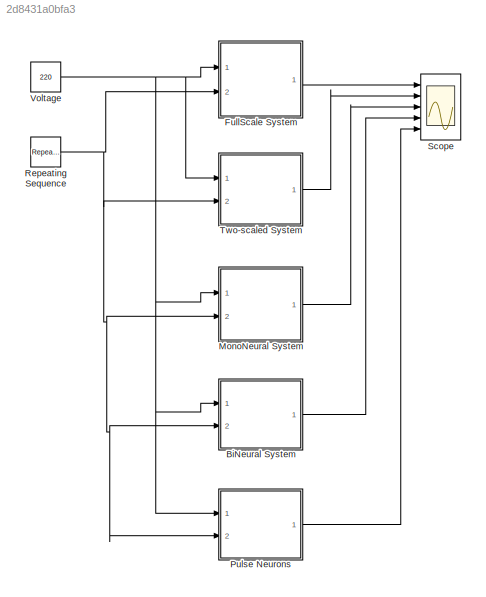
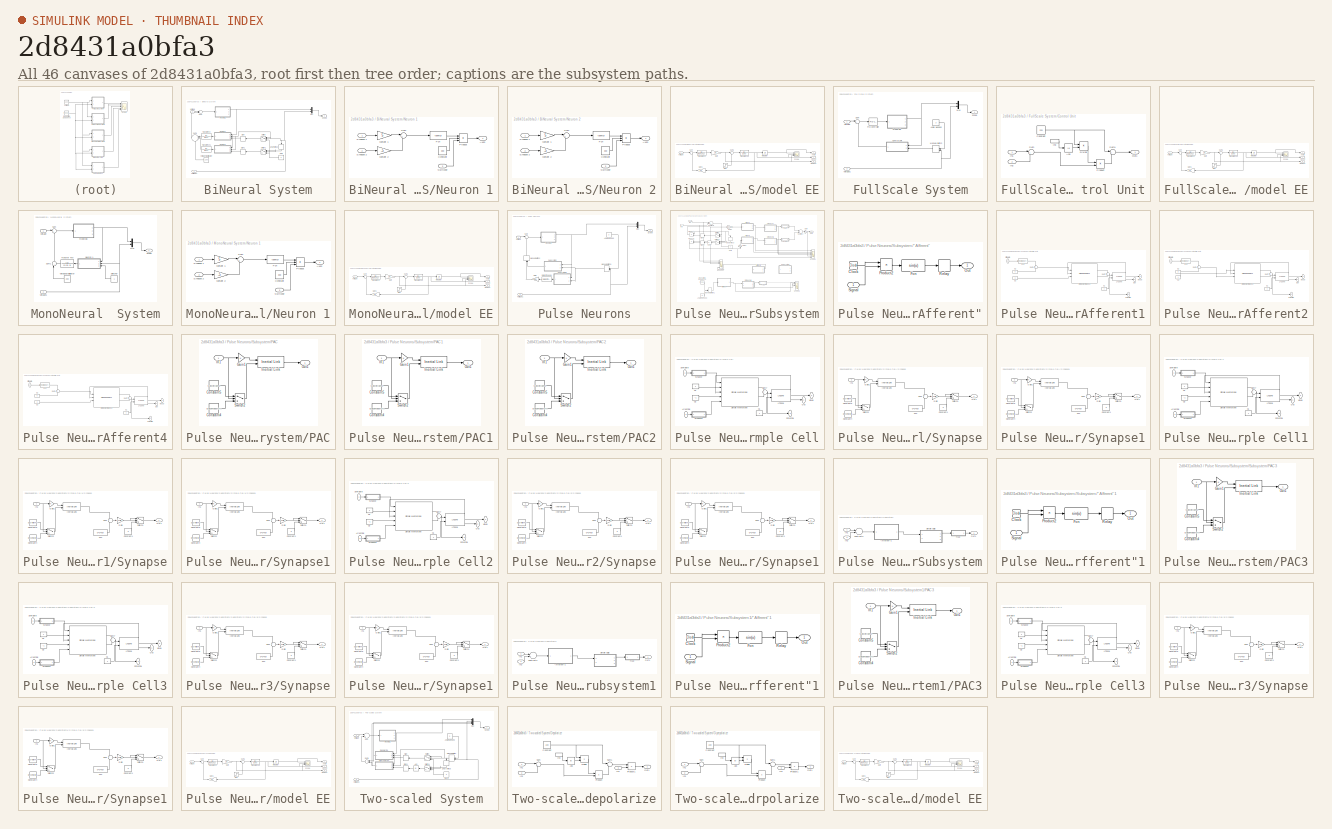
[diagram: thumbnail index - all 46 canvases of the model, root first then tree order]
MODEL slx_2d8431a0bfa3
KIND model
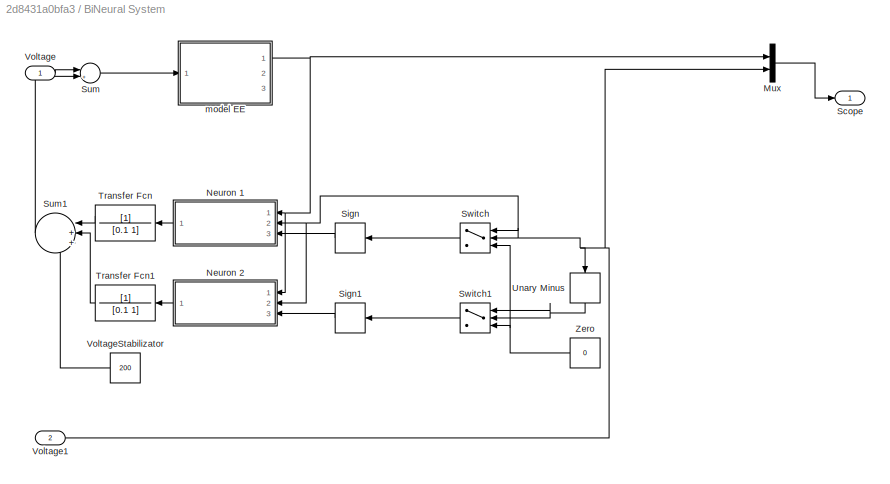
BLOCK [SubSystem] BiNeural System
  Ports = [2, 1]
  RequestExecContextInheritance = off
BLOCK [Mux] BiNeural System/Mux
  DisplayOption = bar
  Inputs = 2
  Ports = [2, 1]
BLOCK [SubSystem] BiNeural System/Neuron 1
  Ports = [3, 1]
  RequestExecContextInheritance = off
BLOCK [Outport] BiNeural System/Neuron 1/Axon
  IconDisplay = Port number
BLOCK [Constant] BiNeural System/Neuron 1/Constant
  Value = 300
BLOCK [Fcn] BiNeural System/Neuron 1/Fcn
  Expr = tanh(u)
BLOCK [Product] BiNeural System/Neuron 1/Product
  InputSameDT = off
  Inputs = 3
  OutDataTypeStr = Inherit: Inherit via internal rule
  Ports = [3, 1]
  SaturateOnIntegerOverflow = off
BLOCK [Sum] BiNeural System/Neuron 1/Sum
  IconShape = round
  InputSameDT = off
  Inputs = |++
  OutDataTypeStr = Inherit: Inherit via internal rule
  Ports = [2, 1]
  SaturateOnIntegerOverflow = off
BLOCK [Inport] BiNeural System/Neuron 1/Switcher
  IconDisplay = Port number
  Port = 3
BLOCK [Inport] BiNeural System/Neuron 1/Synapse 1
  IconDisplay = Port number
BLOCK [Inport] BiNeural System/Neuron 1/Synapse 2
  IconDisplay = Port number
  Port = 2
BLOCK [Gain] BiNeural System/Neuron 1/Weight 1
  Gain = 5
  OutDataTypeStr = Inherit: Inherit via internal rule
  ParamDataTypeStr = Inherit: Inherit via internal rule
  SaturateOnIntegerOverflow = off
BLOCK [Gain] BiNeural System/Neuron 1/Weight 2
  Gain = -5
  OutDataTypeStr = Inherit: Inherit via internal rule
  ParamDataTypeStr = Inherit: Inherit via internal rule
  SaturateOnIntegerOverflow = off
BLOCK [SubSystem] BiNeural System/Neuron 2
  Ports = [3, 1]
  RequestExecContextInheritance = off
BLOCK [Outport] BiNeural System/Neuron 2/Axon
  IconDisplay = Port number
BLOCK [Constant] BiNeural System/Neuron 2/Constant
  Value = 300
BLOCK [Fcn] BiNeural System/Neuron 2/Fcn
  Expr = tanh(u)
BLOCK [Product] BiNeural System/Neuron 2/Product
  InputSameDT = off
  Inputs = 3
  OutDataTypeStr = Inherit: Inherit via internal rule
  Ports = [3, 1]
  SaturateOnIntegerOverflow = off
BLOCK [Sum] BiNeural System/Neuron 2/Sum
  IconShape = round
  InputSameDT = off
  Inputs = |++
  OutDataTypeStr = Inherit: Inherit via internal rule
  Ports = [2, 1]
  SaturateOnIntegerOverflow = off
BLOCK [Inport] BiNeural System/Neuron 2/Switcher
  IconDisplay = Port number
  Port = 3
BLOCK [Inport] BiNeural System/Neuron 2/Synapse 1
  IconDisplay = Port number
BLOCK [Inport] BiNeural System/Neuron 2/Synapse 2
  IconDisplay = Port number
  Port = 2
BLOCK [Gain] BiNeural System/Neuron 2/Weight 1
  Gain = 5
  OutDataTypeStr = Inherit: Inherit via internal rule
  ParamDataTypeStr = Inherit: Inherit via internal rule
  SaturateOnIntegerOverflow = off
BLOCK [Gain] BiNeural System/Neuron 2/Weight 2
  Gain = -5
  OutDataTypeStr = Inherit: Inherit via internal rule
  ParamDataTypeStr = Inherit: Inherit via internal rule
  SaturateOnIntegerOverflow = off
BLOCK [Outport] BiNeural System/Scope
  IconDisplay = Port number
BLOCK [Signum] BiNeural System/Sign
BLOCK [Signum] BiNeural System/Sign1
BLOCK [Sum] BiNeural System/Sum
  IconShape = round
  InputSameDT = off
  Inputs = |+-
  OutDataTypeStr = Inherit: Inherit via internal rule
  Ports = [2, 1]
  SaturateOnIntegerOverflow = off
BLOCK [Sum] BiNeural System/Sum1
  IconShape = round
  InputSameDT = off
  Inputs = |+++
  OutDataTypeStr = Inherit: Inherit via internal rule
  Ports = [3, 1]
  SaturateOnIntegerOverflow = off
BLOCK [Switch] BiNeural System/Switch
  InputSameDT = off
  SaturateOnIntegerOverflow = off
BLOCK [Switch] BiNeural System/Switch1
  InputSameDT = off
  SaturateOnIntegerOverflow = off
BLOCK [TransferFcn] BiNeural System/Transfer Fcn
  Denominator = [0.1 1]
BLOCK [TransferFcn] BiNeural System/Transfer Fcn1
  Denominator = [0.1 1]
BLOCK [UnaryMinus] BiNeural System/Unary Minus
BLOCK [Inport] BiNeural System/Voltage
  IconDisplay = Port number
BLOCK [Inport] BiNeural System/Voltage1
  IconDisplay = Port number
  Port = 2
BLOCK [Constant] BiNeural System/VoltageStabilizator
  Value = 200
BLOCK [Constant] BiNeural System/Zero
  Value = 0
BLOCK [SubSystem] BiNeural System/model EE
  Ports = [1, 3]
  RequestExecContextInheritance = off
BLOCK [Outport] BiNeural System/model EE/Angle
  IconDisplay = Port number
  Tag = Angle
BLOCK [Gain] BiNeural System/model EE/Gain
  Gain = 10
  OutDataTypeStr = Inherit: Inherit via internal rule
  ParamDataTypeStr = Inherit: Inherit via internal rule
  SaturateOnIntegerOverflow = off
BLOCK [Gain] BiNeural System/model EE/Gain1
  Gain = 10
  OutDataTypeStr = Inherit: Inherit via internal rule
  ParamDataTypeStr = Inherit: Inherit via internal rule
  SaturateOnIntegerOverflow = off
BLOCK [Integrator] BiNeural System/model EE/Integrator
  Ports = [1, 1]
BLOCK [Outport] BiNeural System/model EE/Moment
  IconDisplay = Port number
  Port = 3
BLOCK [Scope] BiNeural System/model EE/Scope
  DataFormat = StructureWithTime
  Floating = off
  NumInputPorts = 3
  Ports = [3]
  SampleTime = 0
  ShowLegends = off
  YMax = 100000~5e+007~250000
  YMin = -700000~-4.5e+008~-1.5e+006
BLOCK [Outport] BiNeural System/model EE/Speed
  IconDisplay = Port number
  Port = 2
BLOCK [Step] BiNeural System/model EE/Step
  After = 2500
  SampleTime = 0
  Time = 0.2
BLOCK [Sum] BiNeural System/model EE/Sum
  IconShape = round
  InputSameDT = off
  Inputs = |+-
  OutDataTypeStr = Inherit: Inherit via internal rule
  Ports = [2, 1]
  SaturateOnIntegerOverflow = off
BLOCK [Sum] BiNeural System/model EE/Sum1
  IconShape = round
  InputSameDT = off
  Inputs = |+-
  OutDataTypeStr = Inherit: Inherit via internal rule
  Ports = [2, 1]
  SaturateOnIntegerOverflow = off
BLOCK [TransferFcn] BiNeural System/model EE/Transfer Fcn
  Denominator = [0.001 0.1]
BLOCK [TransferFcn] BiNeural System/model EE/Transfer Fcn1
  Denominator = [10 0]
BLOCK [Inport] BiNeural System/model EE/Voltage
  IconDisplay = Port number
BLOCK [SubSystem] FullScale System
  Ports = [2, 1]
  RequestExecContextInheritance = off
BLOCK [Constant] FullScale System/Angle Needed
  Value = 3
BLOCK [SubSystem] FullScale System/Control Unit
  Ports = [2, 1]
  RequestExecContextInheritance = off
BLOCK [Abs] FullScale System/Control Unit/Abs
  SaturateOnIntegerOverflow = off
BLOCK [Constant] FullScale System/Control Unit/Constant
  Value = 220
BLOCK [Product] FullScale System/Control Unit/Divide
  InputSameDT = off
  Inputs = */
  OutDataTypeStr = Inherit: Inherit via internal rule
  Ports = [2, 1]
  RndMeth = Floor
  SaturateOnIntegerOverflow = off
BLOCK [Inport] FullScale System/Control Unit/In1
  IconDisplay = Port number
BLOCK [Inport] FullScale System/Control Unit/In2
  IconDisplay = Port number
  Port = 2
BLOCK [InportShadow] FullScale System/Control Unit/In3
  IconDisplay = Port number
  Port = 2
BLOCK [Outport] FullScale System/Control Unit/Out1
  IconDisplay = Port number
BLOCK [Product] FullScale System/Control Unit/Product
  InputSameDT = off
  OutDataTypeStr = Inherit: Inherit via internal rule
  Ports = [2, 1]
  SaturateOnIntegerOverflow = off
BLOCK [Sum] FullScale System/Control Unit/Sum
  IconShape = round
  InputSameDT = off
  Inputs = |+-
  OutDataTypeStr = Inherit: Inherit via internal rule
  Ports = [2, 1]
  SaturateOnIntegerOverflow = off
BLOCK [Sum] FullScale System/Control Unit/Sum1
  IconShape = round
  InputSameDT = off
  Inputs = |++
  OutDataTypeStr = Inherit: Inherit via internal rule
  Ports = [2, 1]
  SaturateOnIntegerOverflow = off
BLOCK [ManualSwitch] FullScale System/Manual Switch
  CurrentSetting = 0
BLOCK [Mux] FullScale System/Mux
  DisplayOption = bar
  Inputs = 2
  Ports = [2, 1]
BLOCK [Reference] FullScale System/PID Controller  REF=simulink/Continuous/PID Controller
  AntiWindupMode = none
  Controller = PI
  D = 0.242701786704104
  DOutDataTypeStr = Inherit: Inherit via internal rule
  DOutMax = []
  DOutMin = []
  DParamDataTypeStr = Inherit: Inherit via internal rule
  DParamMax = []
  DParamMin = []
  DifferentiatorICPrevScaledInput = 0
  DifferentiatorOutDataTypeStr = Inherit: Inherit via internal rule
  DifferentiatorOutMax = []
  DifferentiatorOutMin = []
  ExternalReset = none
  FilterContinuousStateAttributes = ''
  FilterMethod = Forward Euler
  FilterOutDataTypeStr = Inherit: Inherit via internal rule
  FilterOutMax = []
  FilterOutMin = []
  FilterRTWStateStorageClass = Auto
  FilterStateMustResolveToSignalObject = off
  Form = Parallel
  I = 22.6639520121412
  IOutDataTypeStr = Inherit: Inherit via internal rule
  IOutMax = []
  IOutMin = []
  IParamDataTypeStr = Inherit: Inherit via internal rule
  IParamMax = []
  IParamMin = []
  IgnoreLimit = off
  InitialConditionForFilter = 0
  InitialConditionForIntegrator = 0
  InitialConditionSource = internal
  IntegratorContinuousStateAttributes = ''
  IntegratorMethod = Forward Euler
  IntegratorOutDataTypeStr = Inherit: Inherit via internal rule
  IntegratorOutMax = []
  IntegratorOutMin = []
  IntegratorRTWStateStorageClass = Auto
  IntegratorStateMustResolveToSignalObject = off
  Kb = 1
  KbOutDataTypeStr = Inherit: Inherit via internal rule
  KbOutMax = []
  KbOutMin = []
  KbParamDataTypeStr = Inherit: Inherit via internal rule
  KbParamMax = []
  KbParamMin = []
  Kt = 1
  KtOutDataTypeStr = Inherit: Inherit via internal rule
  KtOutMax = []
  KtOutMin = []
  KtParamDataTypeStr = Inherit: Inherit via internal rule
  KtParamMax = []
  KtParamMin = []
  LimitOutput = off
  LinearizeAsGain = off
  LockScale = off
  LowerSaturationLimit = -inf
  N = 12.4632340746272
  NOutDataTypeStr = Inherit: Inherit via internal rule
  NOutMax = []
  NOutMin = []
  NParamDataTypeStr = Inherit: Inherit via internal rule
  NParamMax = []
  NParamMin = []
  P = 1.41465294803961
  POutDataTypeStr = Inherit: Inherit via internal rule
  POutMax = []
  POutMin = []
  PParamDataTypeStr = Inherit: Inherit via internal rule
  PParamMax = []
  PParamMin = []
  Ports = [1, 1]
  RndMeth = Floor
  SampleTime = -1
  SaturateOnIntegerOverflow = off
  SaturationOutDataTypeStr = Inherit: Same as input
  SaturationOutMax = []
  SaturationOutMin = []
  SourceBlock = simulink/Continuous/PID Controller
  SourceType = PID 1dof
  SumAccumDataTypeStr = Inherit: Inherit via internal rule
  SumDAccumDataTypeStr = Inherit: Inherit via internal rule
  SumDOutDataTypeStr = Inherit: Inherit via internal rule
  SumDOutMax = []
  SumDOutMin = []
  SumI1AccumDataTypeStr = Inherit: Inherit via internal rule
  SumI1OutDataTypeStr = Inherit: Inherit via internal rule
  SumI1OutMax = []
  SumI1OutMin = []
  SumI2AccumDataTypeStr = Inherit: Inherit via internal rule
  SumI2OutDataTypeStr = Inherit: Inherit via internal rule
  SumI2OutMax = []
  SumI2OutMin = []
  SumI3AccumDataTypeStr = Inherit: Inherit via internal rule
  SumI3OutDataTypeStr = Inherit: Inherit via internal rule
  SumI3OutMax = []
  SumI3OutMin = []
  SumOutDataTypeStr = Inherit: Inherit via internal rule
  SumOutMax = []
  SumOutMin = []
  TimeDomain = Continuous-time
  TrackingMode = off
  UpperSaturationLimit = inf
  UseFilter = on
  ZeroCross = on
BLOCK [Outport] FullScale System/Scope
  IconDisplay = Port number
BLOCK [Sum] FullScale System/Sum
  IconShape = round
  InputSameDT = off
  Inputs = |+-
  OutDataTypeStr = Inherit: Inherit via internal rule
  Ports = [2, 1]
  SaturateOnIntegerOverflow = off
BLOCK [Inport] FullScale System/Voltage
  IconDisplay = Port number
BLOCK [Inport] FullScale System/Voltage1
  IconDisplay = Port number
  Port = 2
BLOCK [SubSystem] FullScale System/model EE
  Ports = [1, 3]
  RequestExecContextInheritance = off
BLOCK [Outport] FullScale System/model EE/Angle
  IconDisplay = Port number
  Tag = Angle
BLOCK [Gain] FullScale System/model EE/Gain
  Gain = 10
  OutDataTypeStr = Inherit: Inherit via internal rule
  ParamDataTypeStr = Inherit: Inherit via internal rule
  SaturateOnIntegerOverflow = off
BLOCK [Gain] FullScale System/model EE/Gain1
  Gain = 10
  OutDataTypeStr = Inherit: Inherit via internal rule
  ParamDataTypeStr = Inherit: Inherit via internal rule
  SaturateOnIntegerOverflow = off
BLOCK [Integrator] FullScale System/model EE/Integrator
  Ports = [1, 1]
BLOCK [Outport] FullScale System/model EE/Moment
  IconDisplay = Port number
  Port = 3
BLOCK [Scope] FullScale System/model EE/Scope
  DataFormat = StructureWithTime
  Floating = off
  NumInputPorts = 3
  Ports = [3]
  SampleTime = 0
  ShowLegends = off
  YMax = 100000~5e+007~250000
  YMin = -700000~-4.5e+008~-1.5e+006
BLOCK [Outport] FullScale System/model EE/Speed
  IconDisplay = Port number
  Port = 2
BLOCK [Step] FullScale System/model EE/Step
  After = 2500
  SampleTime = 0
  Time = 0.2
BLOCK [Sum] FullScale System/model EE/Sum
  IconShape = round
  InputSameDT = off
  Inputs = |+-
  OutDataTypeStr = Inherit: Inherit via internal rule
  Ports = [2, 1]
  SaturateOnIntegerOverflow = off
BLOCK [Sum] FullScale System/model EE/Sum1
  IconShape = round
  InputSameDT = off
  Inputs = |+-
  OutDataTypeStr = Inherit: Inherit via internal rule
  Ports = [2, 1]
  SaturateOnIntegerOverflow = off
BLOCK [TransferFcn] FullScale System/model EE/Transfer Fcn
  Denominator = [0.001 0.1]
BLOCK [TransferFcn] FullScale System/model EE/Transfer Fcn1
  Denominator = [10 0]
BLOCK [Inport] FullScale System/model EE/Voltage
  IconDisplay = Port number
BLOCK [SubSystem] MonoNeural  System
  Ports = [2, 1]
  RequestExecContextInheritance = off
BLOCK [Mux] MonoNeural  System/Mux
  DisplayOption = bar
  Inputs = 2
  Ports = [2, 1]
BLOCK [SubSystem] MonoNeural  System/Neuron 1
  Ports = [3, 1]
  RequestExecContextInheritance = off
BLOCK [Outport] MonoNeural  System/Neuron 1/Axon
  IconDisplay = Port number
BLOCK [Constant] MonoNeural  System/Neuron 1/Constant
  Value = 300
BLOCK [Fcn] MonoNeural  System/Neuron 1/Fcn
  Expr = tanh(u)
BLOCK [Product] MonoNeural  System/Neuron 1/Product
  InputSameDT = off
  Inputs = 3
  OutDataTypeStr = Inherit: Inherit via internal rule
  Ports = [3, 1]
  SaturateOnIntegerOverflow = off
BLOCK [Sum] MonoNeural  System/Neuron 1/Sum
  IconShape = round
  InputSameDT = off
  Inputs = |++
  OutDataTypeStr = Inherit: Inherit via internal rule
  Ports = [2, 1]
  SaturateOnIntegerOverflow = off
BLOCK [Inport] MonoNeural  System/Neuron 1/Switcher
  IconDisplay = Port number
  Port = 3
BLOCK [Inport] MonoNeural  System/Neuron 1/Synapse 1
  IconDisplay = Port number
BLOCK [Inport] MonoNeural  System/Neuron 1/Synapse 2
  IconDisplay = Port number
  Port = 2
BLOCK [Gain] MonoNeural  System/Neuron 1/Weight 1
  Gain = 5
  OutDataTypeStr = Inherit: Inherit via internal rule
  ParamDataTypeStr = Inherit: Inherit via internal rule
  SaturateOnIntegerOverflow = off
BLOCK [Gain] MonoNeural  System/Neuron 1/Weight 2
  Gain = -5
  OutDataTypeStr = Inherit: Inherit via internal rule
  ParamDataTypeStr = Inherit: Inherit via internal rule
  SaturateOnIntegerOverflow = off
BLOCK [Outport] MonoNeural  System/Scope
  IconDisplay = Port number
BLOCK [Sum] MonoNeural  System/Sum
  IconShape = round
  InputSameDT = off
  Inputs = |+-
  OutDataTypeStr = Inherit: Inherit via internal rule
  Ports = [2, 1]
  SaturateOnIntegerOverflow = off
BLOCK [Sum] MonoNeural  System/Sum1
  IconShape = round
  InputSameDT = off
  Inputs = |++
  OutDataTypeStr = Inherit: Inherit via internal rule
  Ports = [2, 1]
  SaturateOnIntegerOverflow = off
BLOCK [Constant] MonoNeural  System/Switcher
BLOCK [TransferFcn] MonoNeural  System/Transfer Fcn
  Denominator = [0.01 1]
BLOCK [Inport] MonoNeural  System/Voltage
  IconDisplay = Port number
BLOCK [Inport] MonoNeural  System/Voltage1
  IconDisplay = Port number
  Port = 2
BLOCK [Constant] MonoNeural  System/VoltageStabilizator
  Value = 200
BLOCK [SubSystem] MonoNeural  System/model EE
  Ports = [1, 3]
  RequestExecContextInheritance = off
BLOCK [Outport] MonoNeural  System/model EE/Angle
  IconDisplay = Port number
  Tag = Angle
BLOCK [Gain] MonoNeural  System/model EE/Gain
  Gain = 10
  OutDataTypeStr = Inherit: Inherit via internal rule
  ParamDataTypeStr = Inherit: Inherit via internal rule
  SaturateOnIntegerOverflow = off
BLOCK [Gain] MonoNeural  System/model EE/Gain1
  Gain = 10
  OutDataTypeStr = Inherit: Inherit via internal rule
  ParamDataTypeStr = Inherit: Inherit via internal rule
  SaturateOnIntegerOverflow = off
BLOCK [Integrator] MonoNeural  System/model EE/Integrator
  Ports = [1, 1]
BLOCK [Outport] MonoNeural  System/model EE/Moment
  IconDisplay = Port number
  Port = 3
BLOCK [Scope] MonoNeural  System/model EE/Scope
  DataFormat = StructureWithTime
  Floating = off
  NumInputPorts = 3
  Ports = [3]
  SampleTime = 0
  ShowLegends = off
  YMax = 100000~5e+007~250000
  YMin = -700000~-4.5e+008~-1.5e+006
BLOCK [Outport] MonoNeural  System/model EE/Speed
  IconDisplay = Port number
  Port = 2
BLOCK [Step] MonoNeural  System/model EE/Step
  After = 2500
  SampleTime = 0
  Time = 0.2
BLOCK [Sum] MonoNeural  System/model EE/Sum
  IconShape = round
  InputSameDT = off
  Inputs = |+-
  OutDataTypeStr = Inherit: Inherit via internal rule
  Ports = [2, 1]
  SaturateOnIntegerOverflow = off
BLOCK [Sum] MonoNeural  System/model EE/Sum1
  IconShape = round
  InputSameDT = off
  Inputs = |+-
  OutDataTypeStr = Inherit: Inherit via internal rule
  Ports = [2, 1]
  SaturateOnIntegerOverflow = off
BLOCK [TransferFcn] MonoNeural  System/model EE/Transfer Fcn
  Denominator = [0.001 0.1]
BLOCK [TransferFcn] MonoNeural  System/model EE/Transfer Fcn1
  Denominator = [10 0]
BLOCK [Inport] MonoNeural  System/model EE/Voltage
  IconDisplay = Port number
BLOCK [SubSystem] Pulse Neurons
  Ports = [2, 1]
  RequestExecContextInheritance = off
BLOCK [Constant] Pulse Neurons/Angle Needed
  Value = 3
BLOCK [Reference] Pulse Neurons/Detect Change  REF=simulink/Logic and Bit
Operations/Detect
Change
  InputProcessing = Inherited
  OutDataTypeStr = uint8
  Ports = [1, 1]
  SourceBlock = simulink/Logic and Bit\nOperations/Detect\nChange
  SourceType = Detect Change
  vinit = 0
BLOCK [Gain] Pulse Neurons/Gain
  Gain = 300
  OutDataTypeStr = Inherit: Inherit via internal rule
  ParamDataTypeStr = Inherit: Inherit via internal rule
  SaturateOnIntegerOverflow = off
BLOCK [ManualSwitch] Pulse Neurons/Manual Switch1
  CurrentSetting = 0
BLOCK [ManualSwitch] Pulse Neurons/Manual Switch2
  CurrentSetting = 0
BLOCK [Mux] Pulse Neurons/Mux
  DisplayOption = bar
  Inputs = 2
  Ports = [2, 1]
BLOCK [Outport] Pulse Neurons/Scope
  IconDisplay = Port number
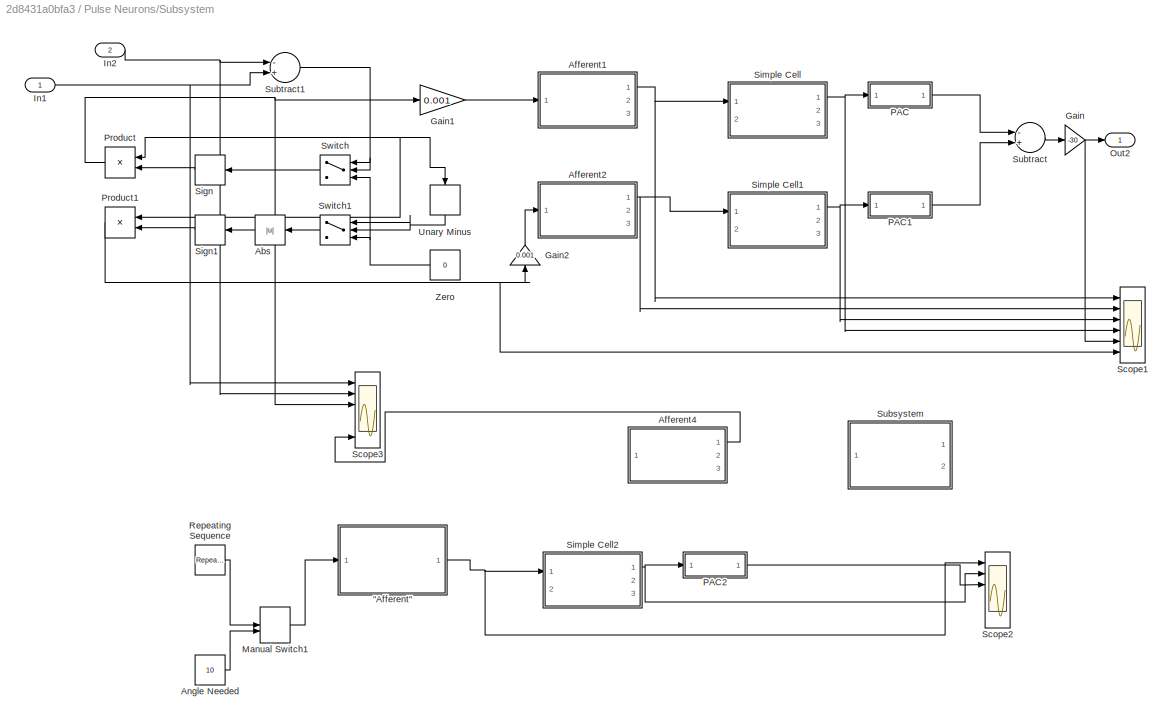
BLOCK [SubSystem] Pulse Neurons/Subsystem
  Ports = [2, 1]
  RequestExecContextInheritance = off
BLOCK [SubSystem] Pulse Neurons/Subsystem/"Afferent"
  Ports = [1, 1]
  RequestExecContextInheritance = off
BLOCK [Clock] Pulse Neurons/Subsystem/"Afferent"/Clock
BLOCK [Fcn] Pulse Neurons/Subsystem/"Afferent"/Fcn
  Expr = sin(u)
BLOCK [Outport] Pulse Neurons/Subsystem/"Afferent"/Out
  IconDisplay = Port number
BLOCK [Product] Pulse Neurons/Subsystem/"Afferent"/Product2
  InputSameDT = off
  OutDataTypeStr = Inherit: Inherit via internal rule
  Ports = [2, 1]
  SaturateOnIntegerOverflow = off
BLOCK [Relay] Pulse Neurons/Subsystem/"Afferent"/Relay
  OffSwitchValue = 0.9
  OnSwitchValue = 0.9
BLOCK [Inport] Pulse Neurons/Subsystem/"Afferent"/Signal
  IconDisplay = Port number
BLOCK [Abs] Pulse Neurons/Subsystem/Abs
  SaturateOnIntegerOverflow = off
BLOCK [SubSystem] Pulse Neurons/Subsystem/Afferent1
  AncestorBlock = NeuroModelerLibrary/Simple Cells/Afferent1
  Ports = [1, 3]
  RequestExecContextInheritance = off
BLOCK [Constant] Pulse Neurons/Subsystem/Afferent1/C1
BLOCK [Constant] Pulse Neurons/Subsystem/Afferent1/C2
  Value = 0
BLOCK [Constant] Pulse Neurons/Subsystem/Afferent1/C3
  Value = -1
BLOCK [Fcn] Pulse Neurons/Subsystem/Afferent1/Fcn
  Expr = 2-exp(-0.001*(u+0.99))
BLOCK [Reference] Pulse Neurons/Subsystem/Afferent1/LTZone  REF=NeuroModelerLibrary/Neuron Elements/LTZone
  FB = 0.08
  IT = 0.005
  NM = 1
  Ports = [2, 3]
  SourceBlock = NeuroModelerLibrary/Neuron Elements/LTZone
  SourceType = Ion pump
  T = 0.000001
BLOCK [Outport] Pulse Neurons/Subsystem/Afferent1/Out
  IconDisplay = Port number
BLOCK [Outport] Pulse Neurons/Subsystem/Afferent1/Potential
  IconDisplay = Port number
  Port = 3
BLOCK [Reference] Pulse Neurons/Subsystem/Afferent1/Simple Membrane1  REF=NeuroModelerLibrary/Neuron Elements/Simple Membrane
  ACm = 1e-7
  ARFm = 1e8
  ARm = 1e7
  ECm = 1e-7
  ERFm = 1e8
  ERm = 1e7
  Ports = [5, 2]
  SourceBlock = NeuroModelerLibrary/Neuron Elements/Simple Membrane
BLOCK [Inport] Pulse Neurons/Subsystem/Afferent1/Stimulate
  IconDisplay = Port number
BLOCK [Sum] Pulse Neurons/Subsystem/Afferent1/Sum1
  IconShape = round
  Ports = [2, 1]
BLOCK [Sum] Pulse Neurons/Subsystem/Afferent1/Sum7
  IconShape = round
  Ports = [2, 1]
BLOCK [Outport] Pulse Neurons/Subsystem/Afferent1/Visual
  IconDisplay = Port number
  Port = 2
BLOCK [SubSystem] Pulse Neurons/Subsystem/Afferent2
  AncestorBlock = NeuroModelerLibrary/Simple Cells/Afferent1
  Ports = [1, 3]
  RequestExecContextInheritance = off
BLOCK [Constant] Pulse Neurons/Subsystem/Afferent2/C1
BLOCK [Constant] Pulse Neurons/Subsystem/Afferent2/C2
  Value = -2
BLOCK [Constant] Pulse Neurons/Subsystem/Afferent2/C3
BLOCK [Fcn] Pulse Neurons/Subsystem/Afferent2/Fcn
  Expr = 2-exp(-0.001*(u+0.99))
BLOCK [Reference] Pulse Neurons/Subsystem/Afferent2/LTZone  REF=NeuroModelerLibrary/Neuron Elements/LTZone
  FB = 0.08
  IT = 0.005
  NM = 1
  Ports = [2, 3]
  SourceBlock = NeuroModelerLibrary/Neuron Elements/LTZone
  SourceType = Ion pump
  T = 0.00001
BLOCK [Outport] Pulse Neurons/Subsystem/Afferent2/Out
  IconDisplay = Port number
BLOCK [Outport] Pulse Neurons/Subsystem/Afferent2/Potential
  IconDisplay = Port number
  Port = 3
BLOCK [Reference] Pulse Neurons/Subsystem/Afferent2/Simple Membrane1  REF=NeuroModelerLibrary/Neuron Elements/Simple Membrane
  ACm = 1e-9
  ARFm = 1e8
  ARm = 1e7
  ECm = 1e-7
  ERFm = 1e8
  ERm = 1e7
  Ports = [5, 2]
  SourceBlock = NeuroModelerLibrary/Neuron Elements/Simple Membrane
BLOCK [Inport] Pulse Neurons/Subsystem/Afferent2/Stimulate
  IconDisplay = Port number
BLOCK [Sum] Pulse Neurons/Subsystem/Afferent2/Sum1
  IconShape = round
  Ports = [2, 1]
BLOCK [Sum] Pulse Neurons/Subsystem/Afferent2/Sum7
  IconShape = round
  Ports = [2, 1]
BLOCK [Outport] Pulse Neurons/Subsystem/Afferent2/Visual
  IconDisplay = Port number
  Port = 2
BLOCK [SubSystem] Pulse Neurons/Subsystem/Afferent4
  AncestorBlock = NeuroModelerLibrary/Simple Cells/Afferent1
  Ports = [1, 3]
  RequestExecContextInheritance = off
BLOCK [Constant] Pulse Neurons/Subsystem/Afferent4/C1
BLOCK [Constant] Pulse Neurons/Subsystem/Afferent4/C2
  Value = 0
BLOCK [Constant] Pulse Neurons/Subsystem/Afferent4/C3
  Value = -1
BLOCK [Fcn] Pulse Neurons/Subsystem/Afferent4/Fcn
  Expr = 2-exp(-0.001*u)
BLOCK [Reference] Pulse Neurons/Subsystem/Afferent4/LTZone  REF=NeuroModelerLibrary/Neuron Elements/LTZone
  FB = 0.08
  IT = 0.005
  NM = 1
  Ports = [2, 3]
  SourceBlock = NeuroModelerLibrary/Neuron Elements/LTZone
  SourceType = Ion pump
  T = 0.000001
BLOCK [Outport] Pulse Neurons/Subsystem/Afferent4/Out
  IconDisplay = Port number
BLOCK [Outport] Pulse Neurons/Subsystem/Afferent4/Potential
  IconDisplay = Port number
  Port = 3
BLOCK [Reference] Pulse Neurons/Subsystem/Afferent4/Simple Membrane1  REF=NeuroModelerLibrary/Neuron Elements/Simple Membrane
  ACm = 1e-7
  ARFm = 1e8
  ARm = 1e7
  ECm = 1e-7
  ERFm = 1e8
  ERm = 1e7
  Ports = [5, 2]
  SourceBlock = NeuroModelerLibrary/Neuron Elements/Simple Membrane
BLOCK [Inport] Pulse Neurons/Subsystem/Afferent4/Stimulate
  IconDisplay = Port number
BLOCK [Sum] Pulse Neurons/Subsystem/Afferent4/Sum1
  IconShape = round
  Ports = [2, 1]
BLOCK [Sum] Pulse Neurons/Subsystem/Afferent4/Sum7
  IconShape = round
  Ports = [2, 1]
BLOCK [Outport] Pulse Neurons/Subsystem/Afferent4/Visual
  IconDisplay = Port number
  Port = 2
BLOCK [Constant] Pulse Neurons/Subsystem/Angle Needed
  Value = 10
BLOCK [Gain] Pulse Neurons/Subsystem/Gain
  Gain = -30
  OutDataTypeStr = Inherit: Inherit via internal rule
  ParamDataTypeStr = Inherit: Inherit via internal rule
  SaturateOnIntegerOverflow = off
BLOCK [Gain] Pulse Neurons/Subsystem/Gain1
  Gain = 0.001
  OutDataTypeStr = Inherit: Inherit via internal rule
  ParamDataTypeStr = Inherit: Inherit via internal rule
  SaturateOnIntegerOverflow = off
BLOCK [Gain] Pulse Neurons/Subsystem/Gain2
  Gain = 0.001
  OutDataTypeStr = Inherit: Inherit via internal rule
  ParamDataTypeStr = Inherit: Inherit via internal rule
  SaturateOnIntegerOverflow = off
BLOCK [Inport] Pulse Neurons/Subsystem/In1
  IconDisplay = Port number
BLOCK [Inport] Pulse Neurons/Subsystem/In2
  IconDisplay = Port number
  Port = 2
BLOCK [ManualSwitch] Pulse Neurons/Subsystem/Manual Switch1
  CurrentSetting = 0
BLOCK [Outport] Pulse Neurons/Subsystem/Out2
  IconDisplay = Port number
BLOCK [SubSystem] Pulse Neurons/Subsystem/PAC
  AncestorBlock = NeuroModelerLibrary/Neuron Elements/Synapse
  Ports = [1, 1]
  RequestExecContextInheritance = off
BLOCK [Constant] Pulse Neurons/Subsystem/PAC/Constant4
  Value = DecompositionTC
BLOCK [Constant] Pulse Neurons/Subsystem/PAC/Constant5
  Value = SecretionTC
BLOCK [Gain] Pulse Neurons/Subsystem/PAC/Gain1
BLOCK [Inport] Pulse Neurons/Subsystem/PAC/In1
  IconDisplay = Port number
BLOCK [Reference] Pulse Neurons/Subsystem/PAC/Inertial Link  REF=NeuroModelerLibrary/Support/Inertial Link
  Ports = [2, 1]
  SourceBlock = NeuroModelerLibrary/Support/Inertial Link
  SourceType = SubSystem
BLOCK [Outport] Pulse Neurons/Subsystem/PAC/Out1
  IconDisplay = Port number
BLOCK [Switch] Pulse Neurons/Subsystem/PAC/Switch2
  InputSameDT = off
  SaturateOnIntegerOverflow = off
  Threshold = 1
BLOCK [SubSystem] Pulse Neurons/Subsystem/PAC1
  AncestorBlock = NeuroModelerLibrary/Neuron Elements/Synapse
  Ports = [1, 1]
  RequestExecContextInheritance = off
BLOCK [Constant] Pulse Neurons/Subsystem/PAC1/Constant4
  Value = DecompositionTC
BLOCK [Constant] Pulse Neurons/Subsystem/PAC1/Constant5
  Value = SecretionTC
BLOCK [Gain] Pulse Neurons/Subsystem/PAC1/Gain1
BLOCK [Inport] Pulse Neurons/Subsystem/PAC1/In1
  IconDisplay = Port number
BLOCK [Reference] Pulse Neurons/Subsystem/PAC1/Inertial Link  REF=NeuroModelerLibrary/Support/Inertial Link
  Ports = [2, 1]
  SourceBlock = NeuroModelerLibrary/Support/Inertial Link
  SourceType = SubSystem
BLOCK [Outport] Pulse Neurons/Subsystem/PAC1/Out1
  IconDisplay = Port number
BLOCK [Switch] Pulse Neurons/Subsystem/PAC1/Switch2
  InputSameDT = off
  SaturateOnIntegerOverflow = off
  Threshold = 1
BLOCK [SubSystem] Pulse Neurons/Subsystem/PAC2
  AncestorBlock = NeuroModelerLibrary/Neuron Elements/Synapse
  Ports = [1, 1]
  RequestExecContextInheritance = off
BLOCK [Constant] Pulse Neurons/Subsystem/PAC2/Constant4
  Value = DecompositionTC
BLOCK [Constant] Pulse Neurons/Subsystem/PAC2/Constant5
  Value = SecretionTC
BLOCK [Gain] Pulse Neurons/Subsystem/PAC2/Gain1
BLOCK [Inport] Pulse Neurons/Subsystem/PAC2/In1
  IconDisplay = Port number
BLOCK [Reference] Pulse Neurons/Subsystem/PAC2/Inertial Link  REF=NeuroModelerLibrary/Support/Inertial Link
  Ports = [2, 1]
  SourceBlock = NeuroModelerLibrary/Support/Inertial Link
  SourceType = SubSystem
BLOCK [Outport] Pulse Neurons/Subsystem/PAC2/Out1
  IconDisplay = Port number
BLOCK [Switch] Pulse Neurons/Subsystem/PAC2/Switch2
  InputSameDT = off
  SaturateOnIntegerOverflow = off
  Threshold = 1
BLOCK [Product] Pulse Neurons/Subsystem/Product
  InputSameDT = off
  OutDataTypeStr = Inherit: Inherit via internal rule
  Ports = [2, 1]
  SaturateOnIntegerOverflow = off
BLOCK [Product] Pulse Neurons/Subsystem/Product1
  InputSameDT = off
  OutDataTypeStr = Inherit: Inherit via internal rule
  Ports = [2, 1]
  SaturateOnIntegerOverflow = off
BLOCK [Reference] Pulse Neurons/Subsystem/Repeating Sequence  REF=simulink/Sources/Repeating
Sequence
  Ports = [0, 1]
  SourceBlock = simulink/Sources/Repeating\nSequence
  SourceType = Repeating table
  rep_seq_t = [0 1 1.01 2 2.01 3 3.01 4 4.01 10]
  rep_seq_y = [3 3 1 1 -2 -2 -1 -1 20 20]
BLOCK [Scope] Pulse Neurons/Subsystem/Scope1
  Floating = off
  MaxDataPoints = 500000
  NumInputPorts = 6
  Ports = [6]
  SampleTime = 0
  SaveName = ScopeData2
  ShowLegends = off
  TickLabels = on
  TimeRange = 4
  YMax = 1~1~1~1~2900~0
  YMin = 0~-1~-1~0~2700~-500
  ZoomMode = xonly
BLOCK [Scope] Pulse Neurons/Subsystem/Scope2
  Floating = off
  MaxDataPoints = 500000
  NumInputPorts = 6
  Ports = [6]
  SampleTime = 0
  SaveName = ScopeData3
  ShowLegends = off
  TickLabels = on
  TimeRange = 4
  YMax = 1~1~1~1~1~1
  YMin = -1~-1~-1~-1~-1~0.65
  ZoomMode = xonly
BLOCK [Scope] Pulse Neurons/Subsystem/Scope3
  Floating = off
  MaxDataPoints = 500000
  NumInputPorts = 6
  Ports = [6]
  SampleTime = 0
  SaveName = ScopeData5
  ShowLegends = off
  TickLabels = on
  TimeRange = 4
  YMax = 4.5~3~1.5~1~0.2~0.2
  YMin = 1~3~-0~0~-0.7~-0
  ZoomMode = xonly
BLOCK [Signum] Pulse Neurons/Subsystem/Sign
BLOCK [Signum] Pulse Neurons/Subsystem/Sign1
BLOCK [SubSystem] Pulse Neurons/Subsystem/Simple Cell
  AncestorBlock = NeuroModelerLibrary/Simple Cells/Simple Cell
  Ports = [2, 3]
  RequestExecContextInheritance = off
BLOCK [Inport] Pulse Neurons/Subsystem/Simple Cell/Arresting
  IconDisplay = Port number
  Port = 2
BLOCK [Constant] Pulse Neurons/Subsystem/Simple Cell/C1
BLOCK [Constant] Pulse Neurons/Subsystem/Simple Cell/C2
BLOCK [Constant] Pulse Neurons/Subsystem/Simple Cell/C3
  Value = -1
BLOCK [Reference] Pulse Neurons/Subsystem/Simple Cell/LTZone  REF=NeuroModelerLibrary/Neuron Elements/LTZone
  FB = 1.7
  IT = 0.005
  NM = 1
  Ports = [2, 3]
  SourceBlock = NeuroModelerLibrary/Neuron Elements/LTZone
  SourceType = Ion pump
  T = 0.000001
BLOCK [Outport] Pulse Neurons/Subsystem/Simple Cell/Out
  IconDisplay = Port number
BLOCK [Outport] Pulse Neurons/Subsystem/Simple Cell/Potential
  IconDisplay = Port number
  Port = 3
BLOCK [Reference] Pulse Neurons/Subsystem/Simple Cell/Simple Membrane  REF=NeuroModelerLibrary/Neuron Elements/Simple Membrane
  ACm = 1e-9
  ARFm = 1e8
  ARm = 1e7
  ECm = 1e-9
  ERFm = 1e8
  ERm = 1e7
  Ports = [5, 2]
  SourceBlock = NeuroModelerLibrary/Neuron Elements/Simple Membrane
BLOCK [Inport] Pulse Neurons/Subsystem/Simple Cell/Stimulate
  IconDisplay = Port number
BLOCK [Sum] Pulse Neurons/Subsystem/Simple Cell/Sum7
  IconShape = round
  Ports = [2, 1]
BLOCK [SubSystem] Pulse Neurons/Subsystem/Simple Cell/Synapse
  AncestorBlock = NeuroModelerLibrary/Neuron Elements/Synapse
  Ports = [1, 1]
  RequestExecContextInheritance = off
BLOCK [Constant] Pulse Neurons/Subsystem/Simple Cell/Synapse/Constant1
  Value = 0
BLOCK [Constant] Pulse Neurons/Subsystem/Simple Cell/Synapse/Constant4
  Value = DecompositionTC
BLOCK [Constant] Pulse Neurons/Subsystem/Simple Cell/Synapse/Constant5
  Value = SecretionTC
BLOCK [Fcn] Pulse Neurons/Subsystem/Simple Cell/Synapse/Fcn
  Expr = u*u*ksi
BLOCK [Gain] Pulse Neurons/Subsystem/Simple Cell/Synapse/Gain
  Gain = 4*ksi/gamma
BLOCK [Gain] Pulse Neurons/Subsystem/Simple Cell/Synapse/Gain1
BLOCK [Inport] Pulse Neurons/Subsystem/Simple Cell/Synapse/In1
  IconDisplay = Port number
BLOCK [Reference] Pulse Neurons/Subsystem/Simple Cell/Synapse/Inertial Link  REF=NeuroModelerLibrary/Support/Inertial Link
  Ports = [2, 1]
  SourceBlock = NeuroModelerLibrary/Support/Inertial Link
  SourceType = SubSystem
BLOCK [Outport] Pulse Neurons/Subsystem/Simple Cell/Synapse/Out1
  IconDisplay = Port number
BLOCK [Sum] Pulse Neurons/Subsystem/Simple Cell/Synapse/Sum
  IconShape = round
  InputSameDT = off
  Inputs = +-
  OutDataTypeStr = Inherit: Inherit via internal rule
  Ports = [2, 1]
BLOCK [Switch] Pulse Neurons/Subsystem/Simple Cell/Synapse/Switch1
  InputSameDT = off
  SaturateOnIntegerOverflow = off
BLOCK [Switch] Pulse Neurons/Subsystem/Simple Cell/Synapse/Switch2
  InputSameDT = off
  SaturateOnIntegerOverflow = off
  Threshold = 1
BLOCK [SubSystem] Pulse Neurons/Subsystem/Simple Cell/Synapse1
  AncestorBlock = NeuroModelerLibrary/Neuron Elements/Synapse
  Ports = [1, 1]
  RequestExecContextInheritance = off
BLOCK [Constant] Pulse Neurons/Subsystem/Simple Cell/Synapse1/Constant1
  Value = 0
BLOCK [Constant] Pulse Neurons/Subsystem/Simple Cell/Synapse1/Constant4
  Value = DecompositionTC
BLOCK [Constant] Pulse Neurons/Subsystem/Simple Cell/Synapse1/Constant5
  Value = SecretionTC
BLOCK [Fcn] Pulse Neurons/Subsystem/Simple Cell/Synapse1/Fcn
  Expr = u*u*ksi
BLOCK [Gain] Pulse Neurons/Subsystem/Simple Cell/Synapse1/Gain
  Gain = 4*ksi/gamma
BLOCK [Gain] Pulse Neurons/Subsystem/Simple Cell/Synapse1/Gain1
BLOCK [Inport] Pulse Neurons/Subsystem/Simple Cell/Synapse1/In1
  IconDisplay = Port number
BLOCK [Reference] Pulse Neurons/Subsystem/Simple Cell/Synapse1/Inertial Link  REF=NeuroModelerLibrary/Support/Inertial Link
  Ports = [2, 1]
  SourceBlock = NeuroModelerLibrary/Support/Inertial Link
  SourceType = SubSystem
BLOCK [Outport] Pulse Neurons/Subsystem/Simple Cell/Synapse1/Out1
  IconDisplay = Port number
BLOCK [Sum] Pulse Neurons/Subsystem/Simple Cell/Synapse1/Sum
  IconShape = round
  InputSameDT = off
  Inputs = +-
  OutDataTypeStr = Inherit: Inherit via internal rule
  Ports = [2, 1]
BLOCK [Switch] Pulse Neurons/Subsystem/Simple Cell/Synapse1/Switch1
  InputSameDT = off
  SaturateOnIntegerOverflow = off
BLOCK [Switch] Pulse Neurons/Subsystem/Simple Cell/Synapse1/Switch2
  InputSameDT = off
  SaturateOnIntegerOverflow = off
  Threshold = 1
BLOCK [Outport] Pulse Neurons/Subsystem/Simple Cell/Visual
  IconDisplay = Port number
  Port = 2
BLOCK [SubSystem] Pulse Neurons/Subsystem/Simple Cell1
  AncestorBlock = NeuroModelerLibrary/Simple Cells/Simple Cell
  Ports = [2, 3]
  RequestExecContextInheritance = off
BLOCK [Inport] Pulse Neurons/Subsystem/Simple Cell1/Arresting
  IconDisplay = Port number
  Port = 2
BLOCK [Constant] Pulse Neurons/Subsystem/Simple Cell1/C1
BLOCK [Constant] Pulse Neurons/Subsystem/Simple Cell1/C2
BLOCK [Constant] Pulse Neurons/Subsystem/Simple Cell1/C3
  Value = -1
BLOCK [Reference] Pulse Neurons/Subsystem/Simple Cell1/LTZone  REF=NeuroModelerLibrary/Neuron Elements/LTZone
  FB = 1.7
  IT = 0.005
  NM = 1
  Ports = [2, 3]
  SourceBlock = NeuroModelerLibrary/Neuron Elements/LTZone
  SourceType = Ion pump
  T = 0.000001
BLOCK [Outport] Pulse Neurons/Subsystem/Simple Cell1/Out
  IconDisplay = Port number
BLOCK [Outport] Pulse Neurons/Subsystem/Simple Cell1/Potential
  IconDisplay = Port number
  Port = 3
BLOCK [Reference] Pulse Neurons/Subsystem/Simple Cell1/Simple Membrane  REF=NeuroModelerLibrary/Neuron Elements/Simple Membrane
  ACm = 1e-9
  ARFm = 1e8
  ARm = 1e7
  ECm = 1e-9
  ERFm = 1e8
  ERm = 1e7
  Ports = [5, 2]
  SourceBlock = NeuroModelerLibrary/Neuron Elements/Simple Membrane
BLOCK [Inport] Pulse Neurons/Subsystem/Simple Cell1/Stimulate
  IconDisplay = Port number
BLOCK [Sum] Pulse Neurons/Subsystem/Simple Cell1/Sum7
  IconShape = round
  Ports = [2, 1]
BLOCK [SubSystem] Pulse Neurons/Subsystem/Simple Cell1/Synapse
  AncestorBlock = NeuroModelerLibrary/Neuron Elements/Synapse
  Ports = [1, 1]
  RequestExecContextInheritance = off
BLOCK [Constant] Pulse Neurons/Subsystem/Simple Cell1/Synapse/Constant1
  Value = 0
BLOCK [Constant] Pulse Neurons/Subsystem/Simple Cell1/Synapse/Constant4
  Value = DecompositionTC
BLOCK [Constant] Pulse Neurons/Subsystem/Simple Cell1/Synapse/Constant5
  Value = SecretionTC
BLOCK [Fcn] Pulse Neurons/Subsystem/Simple Cell1/Synapse/Fcn
  Expr = u*u*ksi
BLOCK [Gain] Pulse Neurons/Subsystem/Simple Cell1/Synapse/Gain
  Gain = 4*ksi/gamma
BLOCK [Gain] Pulse Neurons/Subsystem/Simple Cell1/Synapse/Gain1
BLOCK [Inport] Pulse Neurons/Subsystem/Simple Cell1/Synapse/In1
  IconDisplay = Port number
BLOCK [Reference] Pulse Neurons/Subsystem/Simple Cell1/Synapse/Inertial Link  REF=NeuroModelerLibrary/Support/Inertial Link
  Ports = [2, 1]
  SourceBlock = NeuroModelerLibrary/Support/Inertial Link
  SourceType = SubSystem
BLOCK [Outport] Pulse Neurons/Subsystem/Simple Cell1/Synapse/Out1
  IconDisplay = Port number
BLOCK [Sum] Pulse Neurons/Subsystem/Simple Cell1/Synapse/Sum
  IconShape = round
  InputSameDT = off
  Inputs = +-
  OutDataTypeStr = Inherit: Inherit via internal rule
  Ports = [2, 1]
BLOCK [Switch] Pulse Neurons/Subsystem/Simple Cell1/Synapse/Switch1
  InputSameDT = off
  SaturateOnIntegerOverflow = off
BLOCK [Switch] Pulse Neurons/Subsystem/Simple Cell1/Synapse/Switch2
  InputSameDT = off
  SaturateOnIntegerOverflow = off
  Threshold = 1
BLOCK [SubSystem] Pulse Neurons/Subsystem/Simple Cell1/Synapse1
  AncestorBlock = NeuroModelerLibrary/Neuron Elements/Synapse
  Ports = [1, 1]
  RequestExecContextInheritance = off
BLOCK [Constant] Pulse Neurons/Subsystem/Simple Cell1/Synapse1/Constant1
  Value = 0
BLOCK [Constant] Pulse Neurons/Subsystem/Simple Cell1/Synapse1/Constant4
  Value = DecompositionTC
BLOCK [Constant] Pulse Neurons/Subsystem/Simple Cell1/Synapse1/Constant5
  Value = SecretionTC
BLOCK [Fcn] Pulse Neurons/Subsystem/Simple Cell1/Synapse1/Fcn
  Expr = u*u*ksi
BLOCK [Gain] Pulse Neurons/Subsystem/Simple Cell1/Synapse1/Gain
  Gain = 4*ksi/gamma
BLOCK [Gain] Pulse Neurons/Subsystem/Simple Cell1/Synapse1/Gain1
BLOCK [Inport] Pulse Neurons/Subsystem/Simple Cell1/Synapse1/In1
  IconDisplay = Port number
BLOCK [Reference] Pulse Neurons/Subsystem/Simple Cell1/Synapse1/Inertial Link  REF=NeuroModelerLibrary/Support/Inertial Link
  Ports = [2, 1]
  SourceBlock = NeuroModelerLibrary/Support/Inertial Link
  SourceType = SubSystem
BLOCK [Outport] Pulse Neurons/Subsystem/Simple Cell1/Synapse1/Out1
  IconDisplay = Port number
BLOCK [Sum] Pulse Neurons/Subsystem/Simple Cell1/Synapse1/Sum
  IconShape = round
  InputSameDT = off
  Inputs = +-
  OutDataTypeStr = Inherit: Inherit via internal rule
  Ports = [2, 1]
BLOCK [Switch] Pulse Neurons/Subsystem/Simple Cell1/Synapse1/Switch1
  InputSameDT = off
  SaturateOnIntegerOverflow = off
BLOCK [Switch] Pulse Neurons/Subsystem/Simple Cell1/Synapse1/Switch2
  InputSameDT = off
  SaturateOnIntegerOverflow = off
  Threshold = 1
BLOCK [Outport] Pulse Neurons/Subsystem/Simple Cell1/Visual
  IconDisplay = Port number
  Port = 2
BLOCK [SubSystem] Pulse Neurons/Subsystem/Simple Cell2
  AncestorBlock = NeuroModelerLibrary/Simple Cells/Simple Cell
  Ports = [2, 3]
  RequestExecContextInheritance = off
BLOCK [Inport] Pulse Neurons/Subsystem/Simple Cell2/Arresting
  IconDisplay = Port number
  Port = 2
BLOCK [Constant] Pulse Neurons/Subsystem/Simple Cell2/C1
BLOCK [Constant] Pulse Neurons/Subsystem/Simple Cell2/C2
BLOCK [Constant] Pulse Neurons/Subsystem/Simple Cell2/C3
  Value = -1
BLOCK [Reference] Pulse Neurons/Subsystem/Simple Cell2/LTZone  REF=NeuroModelerLibrary/Neuron Elements/LTZone
  FB = 1.7
  IT = 0.005
  NM = 1
  Ports = [2, 3]
  SourceBlock = NeuroModelerLibrary/Neuron Elements/LTZone
  SourceType = Ion pump
  T = 0.000001
BLOCK [Outport] Pulse Neurons/Subsystem/Simple Cell2/Out
  IconDisplay = Port number
BLOCK [Outport] Pulse Neurons/Subsystem/Simple Cell2/Potential
  IconDisplay = Port number
  Port = 3
BLOCK [Reference] Pulse Neurons/Subsystem/Simple Cell2/Simple Membrane  REF=NeuroModelerLibrary/Neuron Elements/Simple Membrane
  ACm = 1e-9
  ARFm = 1e8
  ARm = 1e7
  ECm = 1e-9
  ERFm = 1e8
  ERm = 1e7
  Ports = [5, 2]
  SourceBlock = NeuroModelerLibrary/Neuron Elements/Simple Membrane
BLOCK [Inport] Pulse Neurons/Subsystem/Simple Cell2/Stimulate
  IconDisplay = Port number
BLOCK [Sum] Pulse Neurons/Subsystem/Simple Cell2/Sum7
  IconShape = round
  Ports = [2, 1]
BLOCK [SubSystem] Pulse Neurons/Subsystem/Simple Cell2/Synapse
  AncestorBlock = NeuroModelerLibrary/Neuron Elements/Synapse
  Ports = [1, 1]
  RequestExecContextInheritance = off
BLOCK [Constant] Pulse Neurons/Subsystem/Simple Cell2/Synapse/Constant1
  Value = 0
BLOCK [Constant] Pulse Neurons/Subsystem/Simple Cell2/Synapse/Constant4
  Value = DecompositionTC
BLOCK [Constant] Pulse Neurons/Subsystem/Simple Cell2/Synapse/Constant5
  Value = SecretionTC
BLOCK [Fcn] Pulse Neurons/Subsystem/Simple Cell2/Synapse/Fcn
  Expr = u*u*ksi
BLOCK [Gain] Pulse Neurons/Subsystem/Simple Cell2/Synapse/Gain
  Gain = 4*ksi/gamma
BLOCK [Gain] Pulse Neurons/Subsystem/Simple Cell2/Synapse/Gain1
BLOCK [Inport] Pulse Neurons/Subsystem/Simple Cell2/Synapse/In1
  IconDisplay = Port number
BLOCK [Reference] Pulse Neurons/Subsystem/Simple Cell2/Synapse/Inertial Link  REF=NeuroModelerLibrary/Support/Inertial Link
  Ports = [2, 1]
  SourceBlock = NeuroModelerLibrary/Support/Inertial Link
  SourceType = SubSystem
BLOCK [Outport] Pulse Neurons/Subsystem/Simple Cell2/Synapse/Out1
  IconDisplay = Port number
BLOCK [Sum] Pulse Neurons/Subsystem/Simple Cell2/Synapse/Sum
  IconShape = round
  InputSameDT = off
  Inputs = +-
  OutDataTypeStr = Inherit: Inherit via internal rule
  Ports = [2, 1]
BLOCK [Switch] Pulse Neurons/Subsystem/Simple Cell2/Synapse/Switch1
  InputSameDT = off
  SaturateOnIntegerOverflow = off
BLOCK [Switch] Pulse Neurons/Subsystem/Simple Cell2/Synapse/Switch2
  InputSameDT = off
  SaturateOnIntegerOverflow = off
  Threshold = 1
BLOCK [SubSystem] Pulse Neurons/Subsystem/Simple Cell2/Synapse1
  AncestorBlock = NeuroModelerLibrary/Neuron Elements/Synapse
  Ports = [1, 1]
  RequestExecContextInheritance = off
BLOCK [Constant] Pulse Neurons/Subsystem/Simple Cell2/Synapse1/Constant1
  Value = 0
BLOCK [Constant] Pulse Neurons/Subsystem/Simple Cell2/Synapse1/Constant4
  Value = DecompositionTC
BLOCK [Constant] Pulse Neurons/Subsystem/Simple Cell2/Synapse1/Constant5
  Value = SecretionTC
BLOCK [Fcn] Pulse Neurons/Subsystem/Simple Cell2/Synapse1/Fcn
  Expr = u*u*ksi
BLOCK [Gain] Pulse Neurons/Subsystem/Simple Cell2/Synapse1/Gain
  Gain = 4*ksi/gamma
BLOCK [Gain] Pulse Neurons/Subsystem/Simple Cell2/Synapse1/Gain1
BLOCK [Inport] Pulse Neurons/Subsystem/Simple Cell2/Synapse1/In1
  IconDisplay = Port number
BLOCK [Reference] Pulse Neurons/Subsystem/Simple Cell2/Synapse1/Inertial Link  REF=NeuroModelerLibrary/Support/Inertial Link
  Ports = [2, 1]
  SourceBlock = NeuroModelerLibrary/Support/Inertial Link
  SourceType = SubSystem
BLOCK [Outport] Pulse Neurons/Subsystem/Simple Cell2/Synapse1/Out1
  IconDisplay = Port number
BLOCK [Sum] Pulse Neurons/Subsystem/Simple Cell2/Synapse1/Sum
  IconShape = round
  InputSameDT = off
  Inputs = +-
  OutDataTypeStr = Inherit: Inherit via internal rule
  Ports = [2, 1]
BLOCK [Switch] Pulse Neurons/Subsystem/Simple Cell2/Synapse1/Switch1
  InputSameDT = off
  SaturateOnIntegerOverflow = off
BLOCK [Switch] Pulse Neurons/Subsystem/Simple Cell2/Synapse1/Switch2
  InputSameDT = off
  SaturateOnIntegerOverflow = off
  Threshold = 1
BLOCK [Outport] Pulse Neurons/Subsystem/Simple Cell2/Visual
  IconDisplay = Port number
  Port = 2
BLOCK [SubSystem] Pulse Neurons/Subsystem/Subsystem
  Ports = [2, 1]
  RequestExecContextInheritance = off
BLOCK [SubSystem] Pulse Neurons/Subsystem/Subsystem/"Afferent"1
  Ports = [1, 1]
  RequestExecContextInheritance = off
BLOCK [Clock] Pulse Neurons/Subsystem/Subsystem/"Afferent"1/Clock
BLOCK [Fcn] Pulse Neurons/Subsystem/Subsystem/"Afferent"1/Fcn
  Expr = sin(u)
BLOCK [Outport] Pulse Neurons/Subsystem/Subsystem/"Afferent"1/Out
  IconDisplay = Port number
BLOCK [Product] Pulse Neurons/Subsystem/Subsystem/"Afferent"1/Product2
  InputSameDT = off
  OutDataTypeStr = Inherit: Inherit via internal rule
  Ports = [2, 1]
  SaturateOnIntegerOverflow = off
BLOCK [Relay] Pulse Neurons/Subsystem/Subsystem/"Afferent"1/Relay
  OffSwitchValue = 0.9
  OnSwitchValue = 0.9
BLOCK [Inport] Pulse Neurons/Subsystem/Subsystem/"Afferent"1/Signal
  IconDisplay = Port number
BLOCK [Inport] Pulse Neurons/Subsystem/Subsystem/In1
  IconDisplay = Port number
BLOCK [Inport] Pulse Neurons/Subsystem/Subsystem/In2
  IconDisplay = Port number
  Port = 2
BLOCK [Outport] Pulse Neurons/Subsystem/Subsystem/Out1
  IconDisplay = Port number
BLOCK [SubSystem] Pulse Neurons/Subsystem/Subsystem/PAC3
  AncestorBlock = NeuroModelerLibrary/Neuron Elements/Synapse
  Ports = [1, 1]
  RequestExecContextInheritance = off
BLOCK [Constant] Pulse Neurons/Subsystem/Subsystem/PAC3/Constant4
  Value = DecompositionTC
BLOCK [Constant] Pulse Neurons/Subsystem/Subsystem/PAC3/Constant5
  Value = SecretionTC
BLOCK [Gain] Pulse Neurons/Subsystem/Subsystem/PAC3/Gain1
BLOCK [Inport] Pulse Neurons/Subsystem/Subsystem/PAC3/In1
  IconDisplay = Port number
BLOCK [Reference] Pulse Neurons/Subsystem/Subsystem/PAC3/Inertial Link  REF=NeuroModelerLibrary/Support/Inertial Link
  Ports = [2, 1]
  SourceBlock = NeuroModelerLibrary/Support/Inertial Link
  SourceType = SubSystem
BLOCK [Outport] Pulse Neurons/Subsystem/Subsystem/PAC3/Out1
  IconDisplay = Port number
BLOCK [Switch] Pulse Neurons/Subsystem/Subsystem/PAC3/Switch2
  InputSameDT = off
  SaturateOnIntegerOverflow = off
  Threshold = 1
BLOCK [SubSystem] Pulse Neurons/Subsystem/Subsystem/Simple Cell3
  AncestorBlock = NeuroModelerLibrary/Simple Cells/Simple Cell
  Ports = [2, 3]
  RequestExecContextInheritance = off
BLOCK [Inport] Pulse Neurons/Subsystem/Subsystem/Simple Cell3/Arresting
  IconDisplay = Port number
  Port = 2
BLOCK [Constant] Pulse Neurons/Subsystem/Subsystem/Simple Cell3/C1
BLOCK [Constant] Pulse Neurons/Subsystem/Subsystem/Simple Cell3/C2
BLOCK [Constant] Pulse Neurons/Subsystem/Subsystem/Simple Cell3/C3
  Value = -1
BLOCK [Reference] Pulse Neurons/Subsystem/Subsystem/Simple Cell3/LTZone  REF=NeuroModelerLibrary/Neuron Elements/LTZone
  FB = 1.7
  IT = 0.005
  NM = 1
  Ports = [2, 3]
  SourceBlock = NeuroModelerLibrary/Neuron Elements/LTZone
  SourceType = Ion pump
  T = 0.000001
BLOCK [Outport] Pulse Neurons/Subsystem/Subsystem/Simple Cell3/Out
  IconDisplay = Port number
BLOCK [Outport] Pulse Neurons/Subsystem/Subsystem/Simple Cell3/Potential
  IconDisplay = Port number
  Port = 3
BLOCK [Reference] Pulse Neurons/Subsystem/Subsystem/Simple Cell3/Simple Membrane  REF=NeuroModelerLibrary/Neuron Elements/Simple Membrane
  ACm = 1e-9
  ARFm = 1e8
  ARm = 1e7
  ECm = 1e-9
  ERFm = 1e8
  ERm = 1e7
  Ports = [5, 2]
  SourceBlock = NeuroModelerLibrary/Neuron Elements/Simple Membrane
BLOCK [Inport] Pulse Neurons/Subsystem/Subsystem/Simple Cell3/Stimulate
  IconDisplay = Port number
BLOCK [Sum] Pulse Neurons/Subsystem/Subsystem/Simple Cell3/Sum7
  IconShape = round
  Ports = [2, 1]
BLOCK [SubSystem] Pulse Neurons/Subsystem/Subsystem/Simple Cell3/Synapse
  AncestorBlock = NeuroModelerLibrary/Neuron Elements/Synapse
  Ports = [1, 1]
  RequestExecContextInheritance = off
BLOCK [Constant] Pulse Neurons/Subsystem/Subsystem/Simple Cell3/Synapse/Constant1
  Value = 0
BLOCK [Constant] Pulse Neurons/Subsystem/Subsystem/Simple Cell3/Synapse/Constant4
  Value = DecompositionTC
BLOCK [Constant] Pulse Neurons/Subsystem/Subsystem/Simple Cell3/Synapse/Constant5
  Value = SecretionTC
BLOCK [Fcn] Pulse Neurons/Subsystem/Subsystem/Simple Cell3/Synapse/Fcn
  Expr = u*u*ksi
BLOCK [Gain] Pulse Neurons/Subsystem/Subsystem/Simple Cell3/Synapse/Gain
  Gain = 4*ksi/gamma
BLOCK [Gain] Pulse Neurons/Subsystem/Subsystem/Simple Cell3/Synapse/Gain1
BLOCK [Inport] Pulse Neurons/Subsystem/Subsystem/Simple Cell3/Synapse/In1
  IconDisplay = Port number
BLOCK [Reference] Pulse Neurons/Subsystem/Subsystem/Simple Cell3/Synapse/Inertial Link  REF=NeuroModelerLibrary/Support/Inertial Link
  Ports = [2, 1]
  SourceBlock = NeuroModelerLibrary/Support/Inertial Link
  SourceType = SubSystem
BLOCK [Outport] Pulse Neurons/Subsystem/Subsystem/Simple Cell3/Synapse/Out1
  IconDisplay = Port number
BLOCK [Sum] Pulse Neurons/Subsystem/Subsystem/Simple Cell3/Synapse/Sum
  IconShape = round
  InputSameDT = off
  Inputs = +-
  OutDataTypeStr = Inherit: Inherit via internal rule
  Ports = [2, 1]
BLOCK [Switch] Pulse Neurons/Subsystem/Subsystem/Simple Cell3/Synapse/Switch1
  InputSameDT = off
  SaturateOnIntegerOverflow = off
BLOCK [Switch] Pulse Neurons/Subsystem/Subsystem/Simple Cell3/Synapse/Switch2
  InputSameDT = off
  SaturateOnIntegerOverflow = off
  Threshold = 1
BLOCK [SubSystem] Pulse Neurons/Subsystem/Subsystem/Simple Cell3/Synapse1
  AncestorBlock = NeuroModelerLibrary/Neuron Elements/Synapse
  Ports = [1, 1]
  RequestExecContextInheritance = off
BLOCK [Constant] Pulse Neurons/Subsystem/Subsystem/Simple Cell3/Synapse1/Constant1
  Value = 0
BLOCK [Constant] Pulse Neurons/Subsystem/Subsystem/Simple Cell3/Synapse1/Constant4
  Value = DecompositionTC
BLOCK [Constant] Pulse Neurons/Subsystem/Subsystem/Simple Cell3/Synapse1/Constant5
  Value = SecretionTC
BLOCK [Fcn] Pulse Neurons/Subsystem/Subsystem/Simple Cell3/Synapse1/Fcn
  Expr = u*u*ksi
BLOCK [Gain] Pulse Neurons/Subsystem/Subsystem/Simple Cell3/Synapse1/Gain
  Gain = 4*ksi/gamma
BLOCK [Gain] Pulse Neurons/Subsystem/Subsystem/Simple Cell3/Synapse1/Gain1
BLOCK [Inport] Pulse Neurons/Subsystem/Subsystem/Simple Cell3/Synapse1/In1
  IconDisplay = Port number
BLOCK [Reference] Pulse Neurons/Subsystem/Subsystem/Simple Cell3/Synapse1/Inertial Link  REF=NeuroModelerLibrary/Support/Inertial Link
  Ports = [2, 1]
  SourceBlock = NeuroModelerLibrary/Support/Inertial Link
  SourceType = SubSystem
BLOCK [Outport] Pulse Neurons/Subsystem/Subsystem/Simple Cell3/Synapse1/Out1
  IconDisplay = Port number
BLOCK [Sum] Pulse Neurons/Subsystem/Subsystem/Simple Cell3/Synapse1/Sum
  IconShape = round
  InputSameDT = off
  Inputs = +-
  OutDataTypeStr = Inherit: Inherit via internal rule
  Ports = [2, 1]
BLOCK [Switch] Pulse Neurons/Subsystem/Subsystem/Simple Cell3/Synapse1/Switch1
  InputSameDT = off
  SaturateOnIntegerOverflow = off
BLOCK [Switch] Pulse Neurons/Subsystem/Subsystem/Simple Cell3/Synapse1/Switch2
  InputSameDT = off
  SaturateOnIntegerOverflow = off
  Threshold = 1
BLOCK [Outport] Pulse Neurons/Subsystem/Subsystem/Simple Cell3/Visual
  IconDisplay = Port number
  Port = 2
BLOCK [Sum] Pulse Neurons/Subsystem/Subsystem/Subtract2
  InputSameDT = off
  Inputs = -+
  OutDataTypeStr = Inherit: Inherit via internal rule
  Ports = [2, 1]
  SaturateOnIntegerOverflow = off
BLOCK [Sum] Pulse Neurons/Subsystem/Subtract
  InputSameDT = off
  Inputs = -+
  OutDataTypeStr = Inherit: Inherit via internal rule
  Ports = [2, 1]
  SaturateOnIntegerOverflow = off
BLOCK [Sum] Pulse Neurons/Subsystem/Subtract1
  InputSameDT = off
  Inputs = -+
  OutDataTypeStr = Inherit: Inherit via internal rule
  Ports = [2, 1]
  SaturateOnIntegerOverflow = off
BLOCK [Switch] Pulse Neurons/Subsystem/Switch
  InputSameDT = off
  SaturateOnIntegerOverflow = off
BLOCK [Switch] Pulse Neurons/Subsystem/Switch1
  InputSameDT = off
  SaturateOnIntegerOverflow = off
BLOCK [UnaryMinus] Pulse Neurons/Subsystem/Unary Minus
BLOCK [Constant] Pulse Neurons/Subsystem/Zero
  Value = 0
BLOCK [SubSystem] Pulse Neurons/Subsystem1
  Ports = [2, 1]
  RequestExecContextInheritance = off
BLOCK [SubSystem] Pulse Neurons/Subsystem1/"Afferent"1
  Ports = [1, 1]
  RequestExecContextInheritance = off
BLOCK [Clock] Pulse Neurons/Subsystem1/"Afferent"1/Clock
BLOCK [Fcn] Pulse Neurons/Subsystem1/"Afferent"1/Fcn
  Expr = sin(u)
BLOCK [Outport] Pulse Neurons/Subsystem1/"Afferent"1/Out
  IconDisplay = Port number
BLOCK [Product] Pulse Neurons/Subsystem1/"Afferent"1/Product2
  InputSameDT = off
  OutDataTypeStr = Inherit: Inherit via internal rule
  Ports = [2, 1]
  SaturateOnIntegerOverflow = off
BLOCK [Relay] Pulse Neurons/Subsystem1/"Afferent"1/Relay
  OffSwitchValue = 0.9
  OnSwitchValue = 0.9
BLOCK [Inport] Pulse Neurons/Subsystem1/"Afferent"1/Signal
  IconDisplay = Port number
BLOCK [Inport] Pulse Neurons/Subsystem1/In1
  IconDisplay = Port number
BLOCK [Inport] Pulse Neurons/Subsystem1/In2
  IconDisplay = Port number
  Port = 2
BLOCK [Outport] Pulse Neurons/Subsystem1/Out1
  IconDisplay = Port number
BLOCK [SubSystem] Pulse Neurons/Subsystem1/PAC3
  AncestorBlock = NeuroModelerLibrary/Neuron Elements/Synapse
  Ports = [1, 1]
  RequestExecContextInheritance = off
BLOCK [Constant] Pulse Neurons/Subsystem1/PAC3/Constant4
  Value = DecompositionTC
BLOCK [Constant] Pulse Neurons/Subsystem1/PAC3/Constant5
  Value = SecretionTC
BLOCK [Gain] Pulse Neurons/Subsystem1/PAC3/Gain1
BLOCK [Inport] Pulse Neurons/Subsystem1/PAC3/In1
  IconDisplay = Port number
BLOCK [Reference] Pulse Neurons/Subsystem1/PAC3/Inertial Link  REF=NeuroModelerLibrary/Support/Inertial Link
  Ports = [2, 1]
  SourceBlock = NeuroModelerLibrary/Support/Inertial Link
  SourceType = SubSystem
BLOCK [Outport] Pulse Neurons/Subsystem1/PAC3/Out1
  IconDisplay = Port number
BLOCK [Switch] Pulse Neurons/Subsystem1/PAC3/Switch2
  InputSameDT = off
  SaturateOnIntegerOverflow = off
  Threshold = 1
BLOCK [SubSystem] Pulse Neurons/Subsystem1/Simple Cell3
  AncestorBlock = NeuroModelerLibrary/Simple Cells/Simple Cell
  Ports = [2, 3]
  RequestExecContextInheritance = off
BLOCK [Inport] Pulse Neurons/Subsystem1/Simple Cell3/Arresting
  IconDisplay = Port number
  Port = 2
BLOCK [Constant] Pulse Neurons/Subsystem1/Simple Cell3/C1
BLOCK [Constant] Pulse Neurons/Subsystem1/Simple Cell3/C2
BLOCK [Constant] Pulse Neurons/Subsystem1/Simple Cell3/C3
  Value = -1
BLOCK [Reference] Pulse Neurons/Subsystem1/Simple Cell3/LTZone  REF=NeuroModelerLibrary/Neuron Elements/LTZone
  FB = 1.7
  IT = 0.005
  NM = 1
  Ports = [2, 3]
  SourceBlock = NeuroModelerLibrary/Neuron Elements/LTZone
  SourceType = Ion pump
  T = 0.000001
BLOCK [Outport] Pulse Neurons/Subsystem1/Simple Cell3/Out
  IconDisplay = Port number
BLOCK [Outport] Pulse Neurons/Subsystem1/Simple Cell3/Potential
  IconDisplay = Port number
  Port = 3
BLOCK [Reference] Pulse Neurons/Subsystem1/Simple Cell3/Simple Membrane  REF=NeuroModelerLibrary/Neuron Elements/Simple Membrane
  ACm = 1e-9
  ARFm = 1e8
  ARm = 1e7
  ECm = 1e-9
  ERFm = 1e8
  ERm = 1e7
  Ports = [5, 2]
  SourceBlock = NeuroModelerLibrary/Neuron Elements/Simple Membrane
BLOCK [Inport] Pulse Neurons/Subsystem1/Simple Cell3/Stimulate
  IconDisplay = Port number
BLOCK [Sum] Pulse Neurons/Subsystem1/Simple Cell3/Sum7
  IconShape = round
  Ports = [2, 1]
BLOCK [SubSystem] Pulse Neurons/Subsystem1/Simple Cell3/Synapse
  AncestorBlock = NeuroModelerLibrary/Neuron Elements/Synapse
  Ports = [1, 1]
  RequestExecContextInheritance = off
BLOCK [Constant] Pulse Neurons/Subsystem1/Simple Cell3/Synapse/Constant1
  Value = 0
BLOCK [Constant] Pulse Neurons/Subsystem1/Simple Cell3/Synapse/Constant4
  Value = DecompositionTC
BLOCK [Constant] Pulse Neurons/Subsystem1/Simple Cell3/Synapse/Constant5
  Value = SecretionTC
BLOCK [Fcn] Pulse Neurons/Subsystem1/Simple Cell3/Synapse/Fcn
  Expr = u*u*ksi
BLOCK [Gain] Pulse Neurons/Subsystem1/Simple Cell3/Synapse/Gain
  Gain = 4*ksi/gamma
BLOCK [Gain] Pulse Neurons/Subsystem1/Simple Cell3/Synapse/Gain1
BLOCK [Inport] Pulse Neurons/Subsystem1/Simple Cell3/Synapse/In1
  IconDisplay = Port number
BLOCK [Reference] Pulse Neurons/Subsystem1/Simple Cell3/Synapse/Inertial Link  REF=NeuroModelerLibrary/Support/Inertial Link
  Ports = [2, 1]
  SourceBlock = NeuroModelerLibrary/Support/Inertial Link
  SourceType = SubSystem
BLOCK [Outport] Pulse Neurons/Subsystem1/Simple Cell3/Synapse/Out1
  IconDisplay = Port number
BLOCK [Sum] Pulse Neurons/Subsystem1/Simple Cell3/Synapse/Sum
  IconShape = round
  InputSameDT = off
  Inputs = +-
  OutDataTypeStr = Inherit: Inherit via internal rule
  Ports = [2, 1]
BLOCK [Switch] Pulse Neurons/Subsystem1/Simple Cell3/Synapse/Switch1
  InputSameDT = off
  SaturateOnIntegerOverflow = off
BLOCK [Switch] Pulse Neurons/Subsystem1/Simple Cell3/Synapse/Switch2
  InputSameDT = off
  SaturateOnIntegerOverflow = off
  Threshold = 1
BLOCK [SubSystem] Pulse Neurons/Subsystem1/Simple Cell3/Synapse1
  AncestorBlock = NeuroModelerLibrary/Neuron Elements/Synapse
  Ports = [1, 1]
  RequestExecContextInheritance = off
BLOCK [Constant] Pulse Neurons/Subsystem1/Simple Cell3/Synapse1/Constant1
  Value = 0
BLOCK [Constant] Pulse Neurons/Subsystem1/Simple Cell3/Synapse1/Constant4
  Value = DecompositionTC
BLOCK [Constant] Pulse Neurons/Subsystem1/Simple Cell3/Synapse1/Constant5
  Value = SecretionTC
BLOCK [Fcn] Pulse Neurons/Subsystem1/Simple Cell3/Synapse1/Fcn
  Expr = u*u*ksi
BLOCK [Gain] Pulse Neurons/Subsystem1/Simple Cell3/Synapse1/Gain
  Gain = 4*ksi/gamma
BLOCK [Gain] Pulse Neurons/Subsystem1/Simple Cell3/Synapse1/Gain1
BLOCK [Inport] Pulse Neurons/Subsystem1/Simple Cell3/Synapse1/In1
  IconDisplay = Port number
BLOCK [Reference] Pulse Neurons/Subsystem1/Simple Cell3/Synapse1/Inertial Link  REF=NeuroModelerLibrary/Support/Inertial Link
  Ports = [2, 1]
  SourceBlock = NeuroModelerLibrary/Support/Inertial Link
  SourceType = SubSystem
BLOCK [Outport] Pulse Neurons/Subsystem1/Simple Cell3/Synapse1/Out1
  IconDisplay = Port number
BLOCK [Sum] Pulse Neurons/Subsystem1/Simple Cell3/Synapse1/Sum
  IconShape = round
  InputSameDT = off
  Inputs = +-
  OutDataTypeStr = Inherit: Inherit via internal rule
  Ports = [2, 1]
BLOCK [Switch] Pulse Neurons/Subsystem1/Simple Cell3/Synapse1/Switch1
  InputSameDT = off
  SaturateOnIntegerOverflow = off
BLOCK [Switch] Pulse Neurons/Subsystem1/Simple Cell3/Synapse1/Switch2
  InputSameDT = off
  SaturateOnIntegerOverflow = off
  Threshold = 1
BLOCK [Outport] Pulse Neurons/Subsystem1/Simple Cell3/Visual
  IconDisplay = Port number
  Port = 2
BLOCK [Sum] Pulse Neurons/Subsystem1/Subtract2
  InputSameDT = off
  Inputs = -+
  OutDataTypeStr = Inherit: Inherit via internal rule
  Ports = [2, 1]
  SaturateOnIntegerOverflow = off
BLOCK [Sum] Pulse Neurons/Sum
  IconShape = round
  InputSameDT = off
  Inputs = |+-
  OutDataTypeStr = Inherit: Inherit via internal rule
  Ports = [2, 1]
  SaturateOnIntegerOverflow = off
BLOCK [Inport] Pulse Neurons/Voltage
  IconDisplay = Port number
BLOCK [Inport] Pulse Neurons/Voltage1
  IconDisplay = Port number
  Port = 2
BLOCK [SubSystem] Pulse Neurons/model EE
  Ports = [1, 3]
  RequestExecContextInheritance = off
BLOCK [Outport] Pulse Neurons/model EE/Angle
  IconDisplay = Port number
  Tag = Angle
BLOCK [Gain] Pulse Neurons/model EE/Gain
  Gain = 10
  OutDataTypeStr = Inherit: Inherit via internal rule
  ParamDataTypeStr = Inherit: Inherit via internal rule
  SaturateOnIntegerOverflow = off
BLOCK [Gain] Pulse Neurons/model EE/Gain1
  Gain = 10
  OutDataTypeStr = Inherit: Inherit via internal rule
  ParamDataTypeStr = Inherit: Inherit via internal rule
  SaturateOnIntegerOverflow = off
BLOCK [Integrator] Pulse Neurons/model EE/Integrator
  Ports = [1, 1]
BLOCK [Outport] Pulse Neurons/model EE/Moment
  IconDisplay = Port number
  Port = 3
BLOCK [Scope] Pulse Neurons/model EE/Scope
  DataFormat = StructureWithTime
  Floating = off
  NumInputPorts = 3
  Ports = [3]
  SampleTime = 0
  ShowLegends = off
  YMax = 100000~5e+007~250000
  YMin = -700000~-4.5e+008~-1.5e+006
BLOCK [Outport] Pulse Neurons/model EE/Speed
  IconDisplay = Port number
  Port = 2
BLOCK [Step] Pulse Neurons/model EE/Step
  After = 2500
  SampleTime = 0
  Time = 0.2
BLOCK [Sum] Pulse Neurons/model EE/Sum
  IconShape = round
  InputSameDT = off
  Inputs = |+-
  OutDataTypeStr = Inherit: Inherit via internal rule
  Ports = [2, 1]
  SaturateOnIntegerOverflow = off
BLOCK [Sum] Pulse Neurons/model EE/Sum1
  IconShape = round
  InputSameDT = off
  Inputs = |+-
  OutDataTypeStr = Inherit: Inherit via internal rule
  Ports = [2, 1]
  SaturateOnIntegerOverflow = off
BLOCK [TransferFcn] Pulse Neurons/model EE/Transfer Fcn
  Denominator = [0.001 0.1]
BLOCK [TransferFcn] Pulse Neurons/model EE/Transfer Fcn1
  Denominator = [10 0]
BLOCK [Inport] Pulse Neurons/model EE/Voltage
  IconDisplay = Port number
BLOCK [Reference] Repeating Sequence  REF=simulink/Sources/Repeating
Sequence
  Ports = [0, 1]
  SourceBlock = simulink/Sources/Repeating\nSequence
  SourceType = Repeating table
  rep_seq_t = [0 1 1.01 2 2.01 3 3.01 4 4.01 10]
  rep_seq_y = [3 3 1 1 -2 -2 -1 -1 20 20]
BLOCK [Scope] Scope
  DataFormat = StructureWithTime
  Floating = off
  MaxDataPoints = 500000
  NumInputPorts = 5
  Ports = [5]
  SampleTime = 0
  SaveName = ScopeData1
  ShowLegends = off
  YMax = 5~200~4~4~500
  YMin = 0~0~0~0~-500
BLOCK [SubSystem] Two-scaled System
  Ports = [2, 1]
  RequestExecContextInheritance = off
BLOCK [Abs] Two-scaled System/Abs
  SaturateOnIntegerOverflow = off
BLOCK [Constant] Two-scaled System/Angle Needed
  Value = 3
BLOCK [SubSystem] Two-scaled System/Depolarize
  Ports = [3, 1]
  RequestExecContextInheritance = off
BLOCK [Abs] Two-scaled System/Depolarize/Abs
  SaturateOnIntegerOverflow = off
BLOCK [Constant] Two-scaled System/Depolarize/Constant
  Value = 220
BLOCK [Product] Two-scaled System/Depolarize/Divide
  InputSameDT = off
  Inputs = */
  OutDataTypeStr = Inherit: Inherit via internal rule
  Ports = [2, 1]
  RndMeth = Floor
  SaturateOnIntegerOverflow = off
BLOCK [Inport] Two-scaled System/Depolarize/In1
  IconDisplay = Port number
BLOCK [Inport] Two-scaled System/Depolarize/In2
  IconDisplay = Port number
  Port = 2
BLOCK [InportShadow] Two-scaled System/Depolarize/In3
  IconDisplay = Port number
  Port = 2
BLOCK [Inport] Two-scaled System/Depolarize/In4
  IconDisplay = Port number
  Port = 3
BLOCK [Outport] Two-scaled System/Depolarize/Out1
  IconDisplay = Port number
BLOCK [Product] Two-scaled System/Depolarize/Product
  InputSameDT = off
  OutDataTypeStr = Inherit: Inherit via internal rule
  Ports = [2, 1]
  SaturateOnIntegerOverflow = off
BLOCK [Product] Two-scaled System/Depolarize/Product1
  InputSameDT = off
  OutDataTypeStr = Inherit: Inherit via internal rule
  Ports = [2, 1]
  SaturateOnIntegerOverflow = off
BLOCK [Sum] Two-scaled System/Depolarize/Sum
  IconShape = round
  InputSameDT = off
  Inputs = |+-
  OutDataTypeStr = Inherit: Inherit via internal rule
  Ports = [2, 1]
  SaturateOnIntegerOverflow = off
BLOCK [Sum] Two-scaled System/Depolarize/Sum1
  IconShape = round
  InputSameDT = off
  Inputs = |++
  OutDataTypeStr = Inherit: Inherit via internal rule
  Ports = [2, 1]
  SaturateOnIntegerOverflow = off
BLOCK [SubSystem] Two-scaled System/Giperpolarize
  Ports = [3, 1]
  RequestExecContextInheritance = off
BLOCK [Abs] Two-scaled System/Giperpolarize/Abs
  SaturateOnIntegerOverflow = off
BLOCK [Constant] Two-scaled System/Giperpolarize/Constant
  Value = 220
BLOCK [Product] Two-scaled System/Giperpolarize/Divide
  InputSameDT = off
  Inputs = */
  OutDataTypeStr = Inherit: Inherit via internal rule
  Ports = [2, 1]
  RndMeth = Floor
  SaturateOnIntegerOverflow = off
BLOCK [Inport] Two-scaled System/Giperpolarize/In1
  IconDisplay = Port number
BLOCK [Inport] Two-scaled System/Giperpolarize/In2
  IconDisplay = Port number
  Port = 2
BLOCK [InportShadow] Two-scaled System/Giperpolarize/In3
  IconDisplay = Port number
  Port = 2
BLOCK [Inport] Two-scaled System/Giperpolarize/In4
  IconDisplay = Port number
  Port = 3
BLOCK [Outport] Two-scaled System/Giperpolarize/Out1
  IconDisplay = Port number
BLOCK [Product] Two-scaled System/Giperpolarize/Product
  InputSameDT = off
  OutDataTypeStr = Inherit: Inherit via internal rule
  Ports = [2, 1]
  SaturateOnIntegerOverflow = off
BLOCK [Product] Two-scaled System/Giperpolarize/Product1
  InputSameDT = off
  OutDataTypeStr = Inherit: Inherit via internal rule
  Ports = [2, 1]
  SaturateOnIntegerOverflow = off
BLOCK [Sum] Two-scaled System/Giperpolarize/Sum
  IconShape = round
  InputSameDT = off
  Inputs = |+-
  OutDataTypeStr = Inherit: Inherit via internal rule
  Ports = [2, 1]
  SaturateOnIntegerOverflow = off
BLOCK [Sum] Two-scaled System/Giperpolarize/Sum1
  IconShape = round
  InputSameDT = off
  Inputs = |++
  OutDataTypeStr = Inherit: Inherit via internal rule
  Ports = [2, 1]
  SaturateOnIntegerOverflow = off
BLOCK [ManualSwitch] Two-scaled System/Manual Switch
  CurrentSetting = 0
BLOCK [Mux] Two-scaled System/Mux
  DisplayOption = bar
  Ports = [4, 1]
BLOCK [Outport] Two-scaled System/Scope
  IconDisplay = Port number
BLOCK [Signum] Two-scaled System/Sign
BLOCK [Signum] Two-scaled System/Sign1
BLOCK [Sum] Two-scaled System/Sum
  IconShape = round
  InputSameDT = off
  Inputs = |+-
  OutDataTypeStr = Inherit: Inherit via internal rule
  Ports = [2, 1]
  SaturateOnIntegerOverflow = off
BLOCK [Sum] Two-scaled System/Sum1
  IconShape = round
  InputSameDT = off
  Inputs = |++
  OutDataTypeStr = Inherit: Inherit via internal rule
  Ports = [2, 1]
  SaturateOnIntegerOverflow = off
BLOCK [Switch] Two-scaled System/Switch
  InputSameDT = off
  SaturateOnIntegerOverflow = off
BLOCK [Switch] Two-scaled System/Switch1
  InputSameDT = off
  SaturateOnIntegerOverflow = off
BLOCK [UnaryMinus] Two-scaled System/Unary Minus
BLOCK [Inport] Two-scaled System/Voltage
  IconDisplay = Port number
BLOCK [Inport] Two-scaled System/Voltage1
  IconDisplay = Port number
  Port = 2
BLOCK [Constant] Two-scaled System/Zero
  Value = 0
BLOCK [SubSystem] Two-scaled System/model EE
  Ports = [1, 3]
  RequestExecContextInheritance = off
BLOCK [Outport] Two-scaled System/model EE/Angle
  IconDisplay = Port number
  Tag = Angle
BLOCK [Gain] Two-scaled System/model EE/Gain
  Gain = 10
  OutDataTypeStr = Inherit: Inherit via internal rule
  ParamDataTypeStr = Inherit: Inherit via internal rule
  SaturateOnIntegerOverflow = off
BLOCK [Gain] Two-scaled System/model EE/Gain1
  Gain = 10
  OutDataTypeStr = Inherit: Inherit via internal rule
  ParamDataTypeStr = Inherit: Inherit via internal rule
  SaturateOnIntegerOverflow = off
BLOCK [Integrator] Two-scaled System/model EE/Integrator
  Ports = [1, 1]
BLOCK [Outport] Two-scaled System/model EE/Moment
  IconDisplay = Port number
  Port = 3
BLOCK [Scope] Two-scaled System/model EE/Scope
  DataFormat = StructureWithTime
  Floating = off
  NumInputPorts = 3
  Ports = [3]
  SampleTime = 0
  ShowLegends = off
  YMax = 100000~5e+007~250000
  YMin = -700000~-4.5e+008~-1.5e+006
BLOCK [Outport] Two-scaled System/model EE/Speed
  IconDisplay = Port number
  Port = 2
BLOCK [Step] Two-scaled System/model EE/Step
  After = 2500
  SampleTime = 0
  Time = 0.2
BLOCK [Sum] Two-scaled System/model EE/Sum
  IconShape = round
  InputSameDT = off
  Inputs = |+-
  OutDataTypeStr = Inherit: Inherit via internal rule
  Ports = [2, 1]
  SaturateOnIntegerOverflow = off
BLOCK [Sum] Two-scaled System/model EE/Sum1
  IconShape = round
  InputSameDT = off
  Inputs = |+-
  OutDataTypeStr = Inherit: Inherit via internal rule
  Ports = [2, 1]
  SaturateOnIntegerOverflow = off
BLOCK [TransferFcn] Two-scaled System/model EE/Transfer Fcn
  Denominator = [0.001 0.1]
BLOCK [TransferFcn] Two-scaled System/model EE/Transfer Fcn1
  Denominator = [10 0]
BLOCK [Inport] Two-scaled System/model EE/Voltage
  IconDisplay = Port number
BLOCK [Constant] Voltage
  Value = 220
LINE BiNeural System/Mux:1 -> BiNeural System/Scope:1
LINE BiNeural System/Neuron 1/Constant:1 -> BiNeural System/Neuron 1/Product:2
LINE BiNeural System/Neuron 1/Fcn:1 -> BiNeural System/Neuron 1/Product:1
LINE BiNeural System/Neuron 1/Product:1 -> BiNeural System/Neuron 1/Axon:1
LINE BiNeural System/Neuron 1/Sum:1 -> BiNeural System/Neuron 1/Fcn:1
LINE BiNeural System/Neuron 1/Switcher:1 -> BiNeural System/Neuron 1/Product:3
LINE BiNeural System/Neuron 1/Synapse 1:1 -> BiNeural System/Neuron 1/Weight 1:1
LINE BiNeural System/Neuron 1/Synapse 2:1 -> BiNeural System/Neuron 1/Weight 2:1
LINE BiNeural System/Neuron 1/Weight 1:1 -> BiNeural System/Neuron 1/Sum:1
LINE BiNeural System/Neuron 1/Weight 2:1 -> BiNeural System/Neuron 1/Sum:2
LINE BiNeural System/Neuron 1:1 -> BiNeural System/Transfer Fcn:1
LINE BiNeural System/Neuron 2/Constant:1 -> BiNeural System/Neuron 2/Product:2
LINE BiNeural System/Neuron 2/Fcn:1 -> BiNeural System/Neuron 2/Product:1
LINE BiNeural System/Neuron 2/Product:1 -> BiNeural System/Neuron 2/Axon:1
LINE BiNeural System/Neuron 2/Sum:1 -> BiNeural System/Neuron 2/Fcn:1
LINE BiNeural System/Neuron 2/Switcher:1 -> BiNeural System/Neuron 2/Product:3
LINE BiNeural System/Neuron 2/Synapse 1:1 -> BiNeural System/Neuron 2/Weight 1:1
LINE BiNeural System/Neuron 2/Synapse 2:1 -> BiNeural System/Neuron 2/Weight 2:1
LINE BiNeural System/Neuron 2/Weight 1:1 -> BiNeural System/Neuron 2/Sum:1
LINE BiNeural System/Neuron 2/Weight 2:1 -> BiNeural System/Neuron 2/Sum:2
LINE BiNeural System/Neuron 2:1 -> BiNeural System/Transfer Fcn1:1
LINE BiNeural System/Sign1:1 -> BiNeural System/Neuron 2:3
LINE BiNeural System/Sign:1 -> BiNeural System/Neuron 1:3
LINE BiNeural System/Sum1:1 -> BiNeural System/Sum:2
LINE BiNeural System/Sum:1 -> BiNeural System/model EE:1
LINE BiNeural System/Switch1:1 -> BiNeural System/Sign1:1
LINE BiNeural System/Switch:1 -> BiNeural System/Sign:1
LINE BiNeural System/Transfer Fcn1:1 -> BiNeural System/Sum1:2
LINE BiNeural System/Transfer Fcn:1 -> BiNeural System/Sum1:1
NET BiNeural System/Unary Minus:1 -> BiNeural System/Switch1:1, BiNeural System/Switch1:2
NET BiNeural System/Voltage1:1 -> BiNeural System/Mux:2, BiNeural System/Neuron 1:2, BiNeural System/Neuron 2:2, BiNeural System/Switch:1, BiNeural System/Switch:2, BiNeural System/Unary Minus:1
LINE BiNeural System/Voltage:1 -> BiNeural System/Sum:1
LINE BiNeural System/VoltageStabilizator:1 -> BiNeural System/Sum1:3
NET BiNeural System/Zero:1 -> BiNeural System/Switch1:3, BiNeural System/Switch:3
LINE BiNeural System/model EE/Gain1:1 -> BiNeural System/model EE/Sum:2
NET BiNeural System/model EE/Gain:1 -> BiNeural System/model EE/Moment:1, BiNeural System/model EE/Scope:3, BiNeural System/model EE/Sum1:1
NET BiNeural System/model EE/Integrator:1 -> BiNeural System/model EE/Angle:1, BiNeural System/model EE/Scope:1
LINE BiNeural System/model EE/Step:1 -> BiNeural System/model EE/Sum1:2
LINE BiNeural System/model EE/Sum1:1 -> BiNeural System/model EE/Transfer Fcn1:1
LINE BiNeural System/model EE/Sum:1 -> BiNeural System/model EE/Transfer Fcn:1
NET BiNeural System/model EE/Transfer Fcn1:1 -> BiNeural System/model EE/Gain1:1, BiNeural System/model EE/Integrator:1, BiNeural System/model EE/Scope:2, BiNeural System/model EE/Speed:1
LINE BiNeural System/model EE/Transfer Fcn:1 -> BiNeural System/model EE/Gain:1
LINE BiNeural System/model EE/Voltage:1 -> BiNeural System/model EE/Sum:1
NET BiNeural System/model EE:1 -> BiNeural System/Mux:1, BiNeural System/Neuron 1:1, BiNeural System/Neuron 2:1
LINE BiNeural System:1 -> Scope:4
LINE FullScale System/Angle Needed:1 -> FullScale System/Manual Switch:1
LINE FullScale System/Control Unit/Abs:1 -> FullScale System/Control Unit/Divide:2
NET FullScale System/Control Unit/Constant:1 -> FullScale System/Control Unit/Divide:1, FullScale System/Control Unit/Sum1:1
LINE FullScale System/Control Unit/Divide:1 -> FullScale System/Control Unit/Product:1
LINE FullScale System/Control Unit/In1:1 -> FullScale System/Control Unit/Sum:1
LINE FullScale System/Control Unit/In2:1 -> FullScale System/Control Unit/Sum:2
LINE FullScale System/Control Unit/In3:1 -> FullScale System/Control Unit/Abs:1
LINE FullScale System/Control Unit/Product:1 -> FullScale System/Control Unit/Sum1:2
LINE FullScale System/Control Unit/Sum1:1 -> FullScale System/Control Unit/Out1:1
LINE FullScale System/Control Unit/Sum:1 -> FullScale System/Control Unit/Product:2
LINE FullScale System/Control Unit:1 -> FullScale System/Sum:2
LINE FullScale System/Manual Switch:1 -> FullScale System/Control Unit:2
LINE FullScale System/Mux:1 -> FullScale System/Scope:1
LINE FullScale System/PID Controller:1 -> FullScale System/model EE:1
LINE FullScale System/Sum:1 -> FullScale System/PID Controller:1
NET FullScale System/Voltage1:1 -> FullScale System/Manual Switch:2, FullScale System/Mux:2
LINE FullScale System/Voltage:1 -> FullScale System/Sum:1
LINE FullScale System/model EE/Gain1:1 -> FullScale System/model EE/Sum:2
NET FullScale System/model EE/Gain:1 -> FullScale System/model EE/Moment:1, FullScale System/model EE/Scope:3, FullScale System/model EE/Sum1:1
NET FullScale System/model EE/Integrator:1 -> FullScale System/model EE/Angle:1, FullScale System/model EE/Scope:1
LINE FullScale System/model EE/Step:1 -> FullScale System/model EE/Sum1:2
LINE FullScale System/model EE/Sum1:1 -> FullScale System/model EE/Transfer Fcn1:1
LINE FullScale System/model EE/Sum:1 -> FullScale System/model EE/Transfer Fcn:1
NET FullScale System/model EE/Transfer Fcn1:1 -> FullScale System/model EE/Gain1:1, FullScale System/model EE/Integrator:1, FullScale System/model EE/Scope:2, FullScale System/model EE/Speed:1
LINE FullScale System/model EE/Transfer Fcn:1 -> FullScale System/model EE/Gain:1
LINE FullScale System/model EE/Voltage:1 -> FullScale System/model EE/Sum:1
NET FullScale System/model EE:1 -> FullScale System/Control Unit:1, FullScale System/Mux:1
LINE FullScale System:1 -> Scope:1
LINE MonoNeural  System/Mux:1 -> MonoNeural  System/Scope:1
LINE MonoNeural  System/Neuron 1/Constant:1 -> MonoNeural  System/Neuron 1/Product:2
LINE MonoNeural  System/Neuron 1/Fcn:1 -> MonoNeural  System/Neuron 1/Product:1
LINE MonoNeural  System/Neuron 1/Product:1 -> MonoNeural  System/Neuron 1/Axon:1
LINE MonoNeural  System/Neuron 1/Sum:1 -> MonoNeural  System/Neuron 1/Fcn:1
LINE MonoNeural  System/Neuron 1/Switcher:1 -> MonoNeural  System/Neuron 1/Product:3
LINE MonoNeural  System/Neuron 1/Synapse 1:1 -> MonoNeural  System/Neuron 1/Weight 1:1
LINE MonoNeural  System/Neuron 1/Synapse 2:1 -> MonoNeural  System/Neuron 1/Weight 2:1
LINE MonoNeural  System/Neuron 1/Weight 1:1 -> MonoNeural  System/Neuron 1/Sum:1
LINE MonoNeural  System/Neuron 1/Weight 2:1 -> MonoNeural  System/Neuron 1/Sum:2
LINE MonoNeural  System/Neuron 1:1 -> MonoNeural  System/Transfer Fcn:1
LINE MonoNeural  System/Sum1:1 -> MonoNeural  System/Sum:2
LINE MonoNeural  System/Sum:1 -> MonoNeural  System/model EE:1
LINE MonoNeural  System/Switcher:1 -> MonoNeural  System/Neuron 1:3
LINE MonoNeural  System/Transfer Fcn:1 -> MonoNeural  System/Sum1:2
NET MonoNeural  System/Voltage1:1 -> MonoNeural  System/Mux:2, MonoNeural  System/Neuron 1:2
LINE MonoNeural  System/Voltage:1 -> MonoNeural  System/Sum:1
LINE MonoNeural  System/VoltageStabilizator:1 -> MonoNeural  System/Sum1:1
LINE MonoNeural  System/model EE/Gain1:1 -> MonoNeural  System/model EE/Sum:2
NET MonoNeural  System/model EE/Gain:1 -> MonoNeural  System/model EE/Moment:1, MonoNeural  System/model EE/Scope:3, MonoNeural  System/model EE/Sum1:1
NET MonoNeural  System/model EE/Integrator:1 -> MonoNeural  System/model EE/Angle:1, MonoNeural  System/model EE/Scope:1
LINE MonoNeural  System/model EE/Step:1 -> MonoNeural  System/model EE/Sum1:2
LINE MonoNeural  System/model EE/Sum1:1 -> MonoNeural  System/model EE/Transfer Fcn1:1
LINE MonoNeural  System/model EE/Sum:1 -> MonoNeural  System/model EE/Transfer Fcn:1
NET MonoNeural  System/model EE/Transfer Fcn1:1 -> MonoNeural  System/model EE/Gain1:1, MonoNeural  System/model EE/Integrator:1, MonoNeural  System/model EE/Scope:2, MonoNeural  System/model EE/Speed:1
LINE MonoNeural  System/model EE/Transfer Fcn:1 -> MonoNeural  System/model EE/Gain:1
LINE MonoNeural  System/model EE/Voltage:1 -> MonoNeural  System/model EE/Sum:1
NET MonoNeural  System/model EE:1 -> MonoNeural  System/Mux:1, MonoNeural  System/Neuron 1:1
LINE MonoNeural  System:1 -> Scope:3
LINE Pulse Neurons/Angle Needed:1 -> Pulse Neurons/Manual Switch1:1
LINE Pulse Neurons/Detect Change:1 -> Pulse Neurons/Gain:1
LINE Pulse Neurons/Gain:1 -> Pulse Neurons/Manual Switch2:1
NET Pulse Neurons/Manual Switch1:1 -> Pulse Neurons/Subsystem1:2, Pulse Neurons/Subsystem:2
LINE Pulse Neurons/Manual Switch2:1 -> Pulse Neurons/Sum:2
LINE Pulse Neurons/Mux:1 -> Pulse Neurons/Scope:1
LINE Pulse Neurons/Subsystem/"Afferent"/Clock:1 -> Pulse Neurons/Subsystem/"Afferent"/Product2:1
LINE Pulse Neurons/Subsystem/"Afferent"/Fcn:1 -> Pulse Neurons/Subsystem/"Afferent"/Relay:1
LINE Pulse Neurons/Subsystem/"Afferent"/Product2:1 -> Pulse Neurons/Subsystem/"Afferent"/Fcn:1
LINE Pulse Neurons/Subsystem/"Afferent"/Relay:1 -> Pulse Neurons/Subsystem/"Afferent"/Out:1
LINE Pulse Neurons/Subsystem/"Afferent"/Signal:1 -> Pulse Neurons/Subsystem/"Afferent"/Product2:2
NET Pulse Neurons/Subsystem/"Afferent":1 -> Pulse Neurons/Subsystem/Scope2:1, Pulse Neurons/Subsystem/Simple Cell2:1
LINE Pulse Neurons/Subsystem/Abs:1 -> Pulse Neurons/Subsystem/Sign1:1
NET Pulse Neurons/Subsystem/Afferent1:1 -> Pulse Neurons/Subsystem/Scope1:1, Pulse Neurons/Subsystem/Simple Cell:1
NET Pulse Neurons/Subsystem/Afferent2:1 -> Pulse Neurons/Subsystem/Scope1:2, Pulse Neurons/Subsystem/Simple Cell1:1
LINE Pulse Neurons/Subsystem/Afferent4:1 -> Pulse Neurons/Subsystem/Scope3:6
LINE Pulse Neurons/Subsystem/Angle Needed:1 -> Pulse Neurons/Subsystem/Manual Switch1:2
LINE Pulse Neurons/Subsystem/Gain1:1 -> Pulse Neurons/Subsystem/Afferent1:1
LINE Pulse Neurons/Subsystem/Gain2:1 -> Pulse Neurons/Subsystem/Afferent2:1
NET Pulse Neurons/Subsystem/Gain:1 -> Pulse Neurons/Subsystem/Out2:1, Pulse Neurons/Subsystem/Scope1:5
NET Pulse Neurons/Subsystem/In1:1 -> Pulse Neurons/Subsystem/Scope3:1, Pulse Neurons/Subsystem/Subtract1:2
NET Pulse Neurons/Subsystem/In2:1 -> Pulse Neurons/Subsystem/Scope3:2, Pulse Neurons/Subsystem/Subtract1:1
LINE Pulse Neurons/Subsystem/Manual Switch1:1 -> Pulse Neurons/Subsystem/"Afferent":1
LINE Pulse Neurons/Subsystem/PAC1:1 -> Pulse Neurons/Subsystem/Subtract:2
LINE Pulse Neurons/Subsystem/PAC2:1 -> Pulse Neurons/Subsystem/Scope2:3
LINE Pulse Neurons/Subsystem/PAC:1 -> Pulse Neurons/Subsystem/Subtract:1
NET Pulse Neurons/Subsystem/Product1:1 -> Pulse Neurons/Subsystem/Gain2:1, Pulse Neurons/Subsystem/Scope1:6
NET Pulse Neurons/Subsystem/Product:1 -> Pulse Neurons/Subsystem/Gain1:1, Pulse Neurons/Subsystem/Scope3:3
LINE Pulse Neurons/Subsystem/Repeating Sequence:1 -> Pulse Neurons/Subsystem/Manual Switch1:1
LINE Pulse Neurons/Subsystem/Sign1:1 -> Pulse Neurons/Subsystem/Product1:2
LINE Pulse Neurons/Subsystem/Sign:1 -> Pulse Neurons/Subsystem/Product:2
NET Pulse Neurons/Subsystem/Simple Cell1:1 -> Pulse Neurons/Subsystem/PAC1:1, Pulse Neurons/Subsystem/Scope1:3
NET Pulse Neurons/Subsystem/Simple Cell2:1 -> Pulse Neurons/Subsystem/PAC2:1, Pulse Neurons/Subsystem/Scope2:2
NET Pulse Neurons/Subsystem/Simple Cell:1 -> Pulse Neurons/Subsystem/PAC:1, Pulse Neurons/Subsystem/Scope1:4
LINE Pulse Neurons/Subsystem/Subsystem/"Afferent"1/Clock:1 -> Pulse Neurons/Subsystem/Subsystem/"Afferent"1/Product2:1
LINE Pulse Neurons/Subsystem/Subsystem/"Afferent"1/Fcn:1 -> Pulse Neurons/Subsystem/Subsystem/"Afferent"1/Relay:1
LINE Pulse Neurons/Subsystem/Subsystem/"Afferent"1/Product2:1 -> Pulse Neurons/Subsystem/Subsystem/"Afferent"1/Fcn:1
LINE Pulse Neurons/Subsystem/Subsystem/"Afferent"1/Relay:1 -> Pulse Neurons/Subsystem/Subsystem/"Afferent"1/Out:1
LINE Pulse Neurons/Subsystem/Subsystem/"Afferent"1/Signal:1 -> Pulse Neurons/Subsystem/Subsystem/"Afferent"1/Product2:2
LINE Pulse Neurons/Subsystem/Subsystem/"Afferent"1:1 -> Pulse Neurons/Subsystem/Subsystem/Simple Cell3:1
LINE Pulse Neurons/Subsystem/Subsystem/In1:1 -> Pulse Neurons/Subsystem/Subsystem/Subtract2:1
LINE Pulse Neurons/Subsystem/Subsystem/In2:1 -> Pulse Neurons/Subsystem/Subsystem/Subtract2:2
LINE Pulse Neurons/Subsystem/Subsystem/PAC3:1 -> Pulse Neurons/Subsystem/Subsystem/Out1:1
LINE Pulse Neurons/Subsystem/Subsystem/Simple Cell3:1 -> Pulse Neurons/Subsystem/Subsystem/PAC3:1
LINE Pulse Neurons/Subsystem/Subsystem/Subtract2:1 -> Pulse Neurons/Subsystem/Subsystem/"Afferent"1:1
NET Pulse Neurons/Subsystem/Subtract1:1 -> Pulse Neurons/Subsystem/Product1:1, Pulse Neurons/Subsystem/Product:1, Pulse Neurons/Subsystem/Switch:1, Pulse Neurons/Subsystem/Switch:2, Pulse Neurons/Subsystem/Unary Minus:1
LINE Pulse Neurons/Subsystem/Subtract:1 -> Pulse Neurons/Subsystem/Gain:1
LINE Pulse Neurons/Subsystem/Switch1:1 -> Pulse Neurons/Subsystem/Abs:1
LINE Pulse Neurons/Subsystem/Switch:1 -> Pulse Neurons/Subsystem/Sign:1
NET Pulse Neurons/Subsystem/Unary Minus:1 -> Pulse Neurons/Subsystem/Switch1:1, Pulse Neurons/Subsystem/Switch1:2
NET Pulse Neurons/Subsystem/Zero:1 -> Pulse Neurons/Subsystem/Switch1:3, Pulse Neurons/Subsystem/Switch:3
LINE Pulse Neurons/Subsystem1/"Afferent"1/Clock:1 -> Pulse Neurons/Subsystem1/"Afferent"1/Product2:1
LINE Pulse Neurons/Subsystem1/"Afferent"1/Fcn:1 -> Pulse Neurons/Subsystem1/"Afferent"1/Relay:1
LINE Pulse Neurons/Subsystem1/"Afferent"1/Product2:1 -> Pulse Neurons/Subsystem1/"Afferent"1/Fcn:1
LINE Pulse Neurons/Subsystem1/"Afferent"1/Relay:1 -> Pulse Neurons/Subsystem1/"Afferent"1/Out:1
LINE Pulse Neurons/Subsystem1/"Afferent"1/Signal:1 -> Pulse Neurons/Subsystem1/"Afferent"1/Product2:2
LINE Pulse Neurons/Subsystem1/"Afferent"1:1 -> Pulse Neurons/Subsystem1/Simple Cell3:1
LINE Pulse Neurons/Subsystem1/In1:1 -> Pulse Neurons/Subsystem1/Subtract2:1
LINE Pulse Neurons/Subsystem1/In2:1 -> Pulse Neurons/Subsystem1/Subtract2:2
LINE Pulse Neurons/Subsystem1/PAC3:1 -> Pulse Neurons/Subsystem1/Out1:1
LINE Pulse Neurons/Subsystem1/Simple Cell3:1 -> Pulse Neurons/Subsystem1/PAC3:1
LINE Pulse Neurons/Subsystem1/Subtract2:1 -> Pulse Neurons/Subsystem1/"Afferent"1:1
LINE Pulse Neurons/Subsystem1:1 -> Pulse Neurons/Detect Change:1
LINE Pulse Neurons/Subsystem:1 -> Pulse Neurons/Manual Switch2:2
LINE Pulse Neurons/Sum:1 -> Pulse Neurons/model EE:1
NET Pulse Neurons/Voltage1:1 -> Pulse Neurons/Manual Switch1:2, Pulse Neurons/Mux:2
LINE Pulse Neurons/Voltage:1 -> Pulse Neurons/Sum:1
LINE Pulse Neurons/model EE/Gain1:1 -> Pulse Neurons/model EE/Sum:2
NET Pulse Neurons/model EE/Gain:1 -> Pulse Neurons/model EE/Moment:1, Pulse Neurons/model EE/Scope:3, Pulse Neurons/model EE/Sum1:1
NET Pulse Neurons/model EE/Integrator:1 -> Pulse Neurons/model EE/Angle:1, Pulse Neurons/model EE/Scope:1
LINE Pulse Neurons/model EE/Step:1 -> Pulse Neurons/model EE/Sum1:2
LINE Pulse Neurons/model EE/Sum1:1 -> Pulse Neurons/model EE/Transfer Fcn1:1
LINE Pulse Neurons/model EE/Sum:1 -> Pulse Neurons/model EE/Transfer Fcn:1
NET Pulse Neurons/model EE/Transfer Fcn1:1 -> Pulse Neurons/model EE/Gain1:1, Pulse Neurons/model EE/Integrator:1, Pulse Neurons/model EE/Scope:2, Pulse Neurons/model EE/Speed:1
LINE Pulse Neurons/model EE/Transfer Fcn:1 -> Pulse Neurons/model EE/Gain:1
LINE Pulse Neurons/model EE/Voltage:1 -> Pulse Neurons/model EE/Sum:1
NET Pulse Neurons/model EE:1 -> Pulse Neurons/Mux:1, Pulse Neurons/Subsystem1:1, Pulse Neurons/Subsystem:1
LINE Pulse Neurons:1 -> Scope:5
NET Repeating Sequence:1 -> BiNeural System:2, FullScale System:2, MonoNeural  System:2, Pulse Neurons:2, Two-scaled System:2
LINE Two-scaled System/Abs:1 -> Two-scaled System/Sign1:1
LINE Two-scaled System/Angle Needed:1 -> Two-scaled System/Manual Switch:1
LINE Two-scaled System/Depolarize/Abs:1 -> Two-scaled System/Depolarize/Divide:2
NET Two-scaled System/Depolarize/Constant:1 -> Two-scaled System/Depolarize/Divide:1, Two-scaled System/Depolarize/Sum1:1
LINE Two-scaled System/Depolarize/Divide:1 -> Two-scaled System/Depolarize/Product:1
LINE Two-scaled System/Depolarize/In1:1 -> Two-scaled System/Depolarize/Sum:1
LINE Two-scaled System/Depolarize/In2:1 -> Two-scaled System/Depolarize/Sum:2
LINE Two-scaled System/Depolarize/In3:1 -> Two-scaled System/Depolarize/Abs:1
LINE Two-scaled System/Depolarize/In4:1 -> Two-scaled System/Depolarize/Product1:2
LINE Two-scaled System/Depolarize/Product1:1 -> Two-scaled System/Depolarize/Out1:1
LINE Two-scaled System/Depolarize/Product:1 -> Two-scaled System/Depolarize/Sum1:2
LINE Two-scaled System/Depolarize/Sum1:1 -> Two-scaled System/Depolarize/Product1:1
LINE Two-scaled System/Depolarize/Sum:1 -> Two-scaled System/Depolarize/Product:2
NET Two-scaled System/Depolarize:1 -> Two-scaled System/Mux:3, Two-scaled System/Sum1:1
LINE Two-scaled System/Giperpolarize/Abs:1 -> Two-scaled System/Giperpolarize/Divide:2
NET Two-scaled System/Giperpolarize/Constant:1 -> Two-scaled System/Giperpolarize/Divide:1, Two-scaled System/Giperpolarize/Sum1:1
LINE Two-scaled System/Giperpolarize/Divide:1 -> Two-scaled System/Giperpolarize/Product:1
LINE Two-scaled System/Giperpolarize/In1:1 -> Two-scaled System/Giperpolarize/Sum:1
LINE Two-scaled System/Giperpolarize/In2:1 -> Two-scaled System/Giperpolarize/Sum:2
LINE Two-scaled System/Giperpolarize/In3:1 -> Two-scaled System/Giperpolarize/Abs:1
LINE Two-scaled System/Giperpolarize/In4:1 -> Two-scaled System/Giperpolarize/Product1:2
LINE Two-scaled System/Giperpolarize/Product1:1 -> Two-scaled System/Giperpolarize/Out1:1
LINE Two-scaled System/Giperpolarize/Product:1 -> Two-scaled System/Giperpolarize/Sum1:2
LINE Two-scaled System/Giperpolarize/Sum1:1 -> Two-scaled System/Giperpolarize/Product1:1
LINE Two-scaled System/Giperpolarize/Sum:1 -> Two-scaled System/Giperpolarize/Product:2
NET Two-scaled System/Giperpolarize:1 -> Two-scaled System/Mux:4, Two-scaled System/Sum1:2
NET Two-scaled System/Manual Switch:1 -> Two-scaled System/Depolarize:2, Two-scaled System/Giperpolarize:2, Two-scaled System/Switch:1, Two-scaled System/Switch:2, Two-scaled System/Unary Minus:1
LINE Two-scaled System/Mux:1 -> Two-scaled System/Scope:1
LINE Two-scaled System/Sign1:1 -> Two-scaled System/Giperpolarize:3
LINE Two-scaled System/Sign:1 -> Two-scaled System/Depolarize:3
LINE Two-scaled System/Sum1:1 -> Two-scaled System/Sum:2
LINE Two-scaled System/Sum:1 -> Two-scaled System/model EE:1
LINE Two-scaled System/Switch1:1 -> Two-scaled System/Abs:1
LINE Two-scaled System/Switch:1 -> Two-scaled System/Sign:1
NET Two-scaled System/Unary Minus:1 -> Two-scaled System/Switch1:1, Two-scaled System/Switch1:2
NET Two-scaled System/Voltage1:1 -> Two-scaled System/Manual Switch:2, Two-scaled System/Mux:2
LINE Two-scaled System/Voltage:1 -> Two-scaled System/Sum:1
NET Two-scaled System/Zero:1 -> Two-scaled System/Switch1:3, Two-scaled System/Switch:3
LINE Two-scaled System/model EE/Gain1:1 -> Two-scaled System/model EE/Sum:2
NET Two-scaled System/model EE/Gain:1 -> Two-scaled System/model EE/Moment:1, Two-scaled System/model EE/Scope:3, Two-scaled System/model EE/Sum1:1
NET Two-scaled System/model EE/Integrator:1 -> Two-scaled System/model EE/Angle:1, Two-scaled System/model EE/Scope:1
LINE Two-scaled System/model EE/Step:1 -> Two-scaled System/model EE/Sum1:2
LINE Two-scaled System/model EE/Sum1:1 -> Two-scaled System/model EE/Transfer Fcn1:1
LINE Two-scaled System/model EE/Sum:1 -> Two-scaled System/model EE/Transfer Fcn:1
NET Two-scaled System/model EE/Transfer Fcn1:1 -> Two-scaled System/model EE/Gain1:1, Two-scaled System/model EE/Integrator:1, Two-scaled System/model EE/Scope:2, Two-scaled System/model EE/Speed:1
LINE Two-scaled System/model EE/Transfer Fcn:1 -> Two-scaled System/model EE/Gain:1
LINE Two-scaled System/model EE/Voltage:1 -> Two-scaled System/model EE/Sum:1
NET Two-scaled System/model EE:1 -> Two-scaled System/Depolarize:1, Two-scaled System/Giperpolarize:1, Two-scaled System/Mux:1
LINE Two-scaled System:1 -> Scope:2
NET Voltage:1 -> BiNeural System:1, FullScale System:1, MonoNeural  System:1, Pulse Neurons:1, Two-scaled System:1
note: NET lines group one-source signal fan-out (src -> all destinations, sorted); 1:1 wires keep LINE
